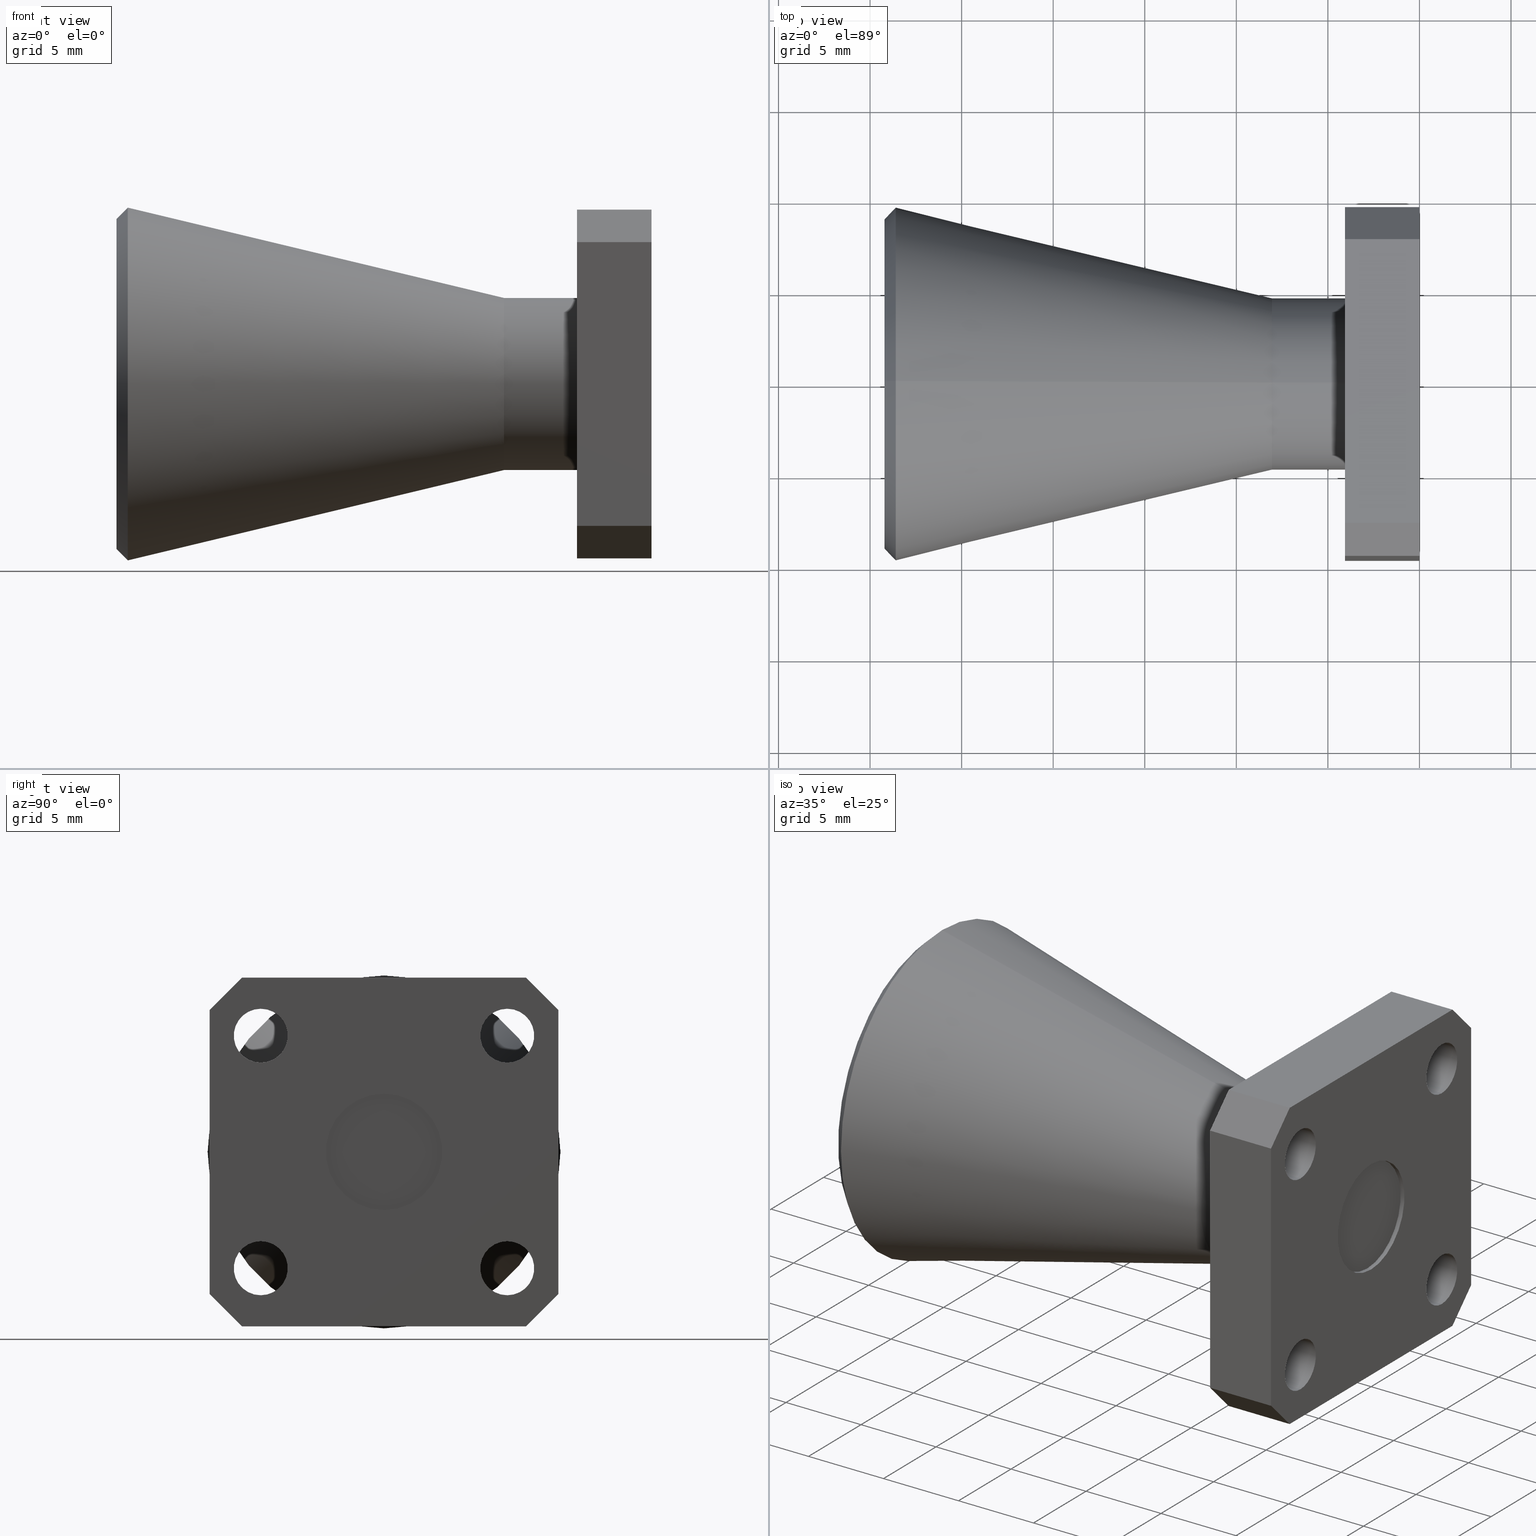
[diagram: canonical four-view strip — front | top / right | iso, engineering-drawing reading convention]
A machine part, canonical four-view strip (front | top / right | iso — engineering-drawing reading convention). The complete STEP part file that produces these views, byte-faithful:
ISO-10303-21;
HEADER;
FILE_DESCRIPTION (( 'STEP AP214' ),
    '1' );
FILE_NAME ('SAC-1533-250-S2, DF.STEP',
    '2018-05-25T22:20:50',
    ( '' ),
    ( '' ),
    'SwSTEP 2.0',
    'SolidWorks 2016',
    '' );
FILE_SCHEMA (( 'AUTOMOTIVE_DESIGN' ));
ENDSEC;

DATA;
#1 = VECTOR ( 'NONE', #634, 39.37007874015748100 ) ;
#2 = FACE_OUTER_BOUND ( 'NONE', #323, .T. ) ;
#3 = EDGE_LOOP ( 'NONE', ( #154, #747, #4, #443 ) ) ;
#4 = ORIENTED_EDGE ( 'NONE', *, *, #875, .T. ) ;
#5 = ORIENTED_EDGE ( 'NONE', *, *, #377, .T. ) ;
#6 = DIRECTION ( 'NONE',  ( 1.000000000000000000, -0.0000000000000000000, -0.0000000000000000000 ) ) ;
#7 = AXIS2_PLACEMENT_3D ( 'NONE', #635, #898, #772 ) ;
#8 = CARTESIAN_POINT ( 'NONE',  ( 0.0000000000000000000, 0.3750000000000000600, 0.3750000000000001100 ) ) ;
#9 = CARTESIAN_POINT ( 'NONE',  ( -0.1600000000000000000, 0.3750000000000000600, -0.3049999999999993300 ) ) ;
#10 = DIRECTION ( 'NONE',  ( 0.0000000000000000000, 0.0000000000000000000, 1.000000000000000000 ) ) ;
#11 = EDGE_CURVE ( 'NONE', #844, #597, #652, .T. ) ;
#12 = CARTESIAN_POINT ( 'NONE',  ( 0.0000000000000000000, -0.2650000000000000700, 0.2500000000000000600 ) ) ;
#13 = SHAPE_DEFINITION_REPRESENTATION ( #34, #124 ) ;
#14 = LINE ( 'NONE', #347, #730 ) ;
#15 = CARTESIAN_POINT ( 'NONE',  ( -0.1600000000000000000, -0.3049999999999996600, -0.3749999999999999400 ) ) ;
#16 = CONICAL_SURFACE ( 'NONE', #239, 0.3791920118220987200, 0.7853981633974469500 ) ;
#17 = ORIENTED_EDGE ( 'NONE', *, *, #191, .F. ) ;
#18 = ORIENTED_EDGE ( 'NONE', *, *, #328, .T. ) ;
#19 = DIRECTION ( 'NONE',  ( 1.000000000000000000, 0.0000000000000000000, 0.0000000000000000000 ) ) ;
#20 = ORIENTED_EDGE ( 'NONE', *, *, #491, .F. ) ;
#21 = CARTESIAN_POINT ( 'NONE',  ( -6.594723013408498700E-018, 0.2650000000000000100, -0.2499999999999999200 ) ) ;
#22 =( GEOMETRIC_REPRESENTATION_CONTEXT ( 3 ) GLOBAL_UNCERTAINTY_ASSIGNED_CONTEXT ( ( #497 ) ) GLOBAL_UNIT_ASSIGNED_CONTEXT ( ( #530, #327, #393 ) ) REPRESENTATION_CONTEXT ( 'NONE', 'WORKASPACE' ) );
#23 = ADVANCED_FACE ( 'NONE', ( #680 ), #624, .T. ) ;
#24 = DIRECTION ( 'NONE',  ( 0.0000000000000000000, 0.0000000000000000000, -1.000000000000000000 ) ) ;
#25 = DIRECTION ( 'NONE',  ( -1.000000000000000000, 0.0000000000000000000, 0.0000000000000000000 ) ) ;
#26 = COLOUR_RGB ( '',1.000000000000000000, 0.8117647058823529400, 0.5019607843137254800 ) ;
#27 = AXIS2_PLACEMENT_3D ( 'NONE', #212, #697, #886 ) ;
#28 = LINE ( 'NONE', #395, #88 ) ;
#29 = CARTESIAN_POINT ( 'NONE',  ( -0.3169400459818915700, 0.0000000000000000000, 0.0000000000000000000 ) ) ;
#30 = ORIENTED_EDGE ( 'NONE', *, *, #365, .F. ) ;
#31 = VERTEX_POINT ( 'NONE', #270 ) ;
#32 = ORIENTED_EDGE ( 'NONE', *, *, #408, .T. ) ;
#33 = ORIENTED_EDGE ( 'NONE', *, *, #126, .F. ) ;
#34 = PRODUCT_DEFINITION_SHAPE ( 'NONE', 'NONE',  #70 ) ;
#35 = DIRECTION ( 'NONE',  ( 1.000000000000000000, 0.0000000000000000000, 0.0000000000000000000 ) ) ;
#36 = AXIS2_PLACEMENT_3D ( 'NONE', #132, #471, #542 ) ;
#37 = VECTOR ( 'NONE', #216, 39.37007874015748900 ) ;
#38 = APPLICATION_PROTOCOL_DEFINITION ( 'draft international standard', 'automotive_design', 1998, #386 ) ;
#39 = CIRCLE ( 'NONE', #717, 0.1849999999999999400 ) ;
#40 = EDGE_CURVE ( 'NONE', #691, #300, #842, .T. ) ;
#41 = ORIENTED_EDGE ( 'NONE', *, *, #525, .T. ) ;
#42 = ORIENTED_EDGE ( 'NONE', *, *, #211, .T. ) ;
#43 = CARTESIAN_POINT ( 'NONE',  ( -6.594723013408498700E-018, -0.2650000000000000700, 0.3080000000000001100 ) ) ;
#44 = DIRECTION ( 'NONE',  ( 0.0000000000000000000, 0.0000000000000000000, -1.000000000000000000 ) ) ;
#45 = CARTESIAN_POINT ( 'NONE',  ( -6.594723013408498700E-018, 0.2649999999999999600, 0.2500000000000000600 ) ) ;
#46 = ADVANCED_FACE ( 'NONE', ( #341 ), #205, .T. ) ;
#47 = CARTESIAN_POINT ( 'NONE',  ( 0.0000000000000000000, -0.2650000000000000700, 0.1920000000000000900 ) ) ;
#48 =( CONVERSION_BASED_UNIT ( 'INCH', #728 ) LENGTH_UNIT ( ) NAMED_UNIT ( #74 ) );
#49 = CIRCLE ( 'NONE', #899, 0.05799999999999996800 ) ;
#50 = CARTESIAN_POINT ( 'NONE',  ( -1.125807988177900600, 0.0000000000000000000, 0.0000000000000000000 ) ) ;
#51 = LINE ( 'NONE', #8, #72 ) ;
#52 = EDGE_CURVE ( 'NONE', #853, #31, #493, .T. ) ;
#53 = ORIENTED_EDGE ( 'NONE', *, *, #887, .F. ) ;
#54 = APPLICATION_PROTOCOL_DEFINITION ( 'draft international standard', 'automotive_design', 1998, #468 ) ;
#55 = VECTOR ( 'NONE', #838, 39.37007874015748100 ) ;
#56 = AXIS2_PLACEMENT_3D ( 'NONE', #503, #787, #373 ) ;
#57 = ORIENTED_EDGE ( 'NONE', *, *, #278, .F. ) ;
#58 = CARTESIAN_POINT ( 'NONE',  ( -0.1600000000000000000, -0.3049999999999999400, 0.3750000000000001100 ) ) ;
#59 = AXIS2_PLACEMENT_3D ( 'NONE', #144, #280, #689 ) ;
#60 = CARTESIAN_POINT ( 'NONE',  ( -0.1600000000000000000, 0.0000000000000000000, -0.1849999999999999400 ) ) ;
#61 = VECTOR ( 'NONE', #68, 39.37007874015748100 ) ;
#62 = VECTOR ( 'NONE', #598, 39.37007874015748100 ) ;
#63 = DIRECTION ( 'NONE',  ( -0.0000000000000000000, -1.000000000000000000, -0.0000000000000000000 ) ) ;
#64 = VERTEX_POINT ( 'NONE', #547 ) ;
#65 = ORIENTED_EDGE ( 'NONE', *, *, #40, .T. ) ;
#66 = EDGE_CURVE ( 'NONE', #195, #893, #421, .T. ) ;
#67 = CARTESIAN_POINT ( 'NONE',  ( -1.149999999999999900, 0.0000000000000000000, 0.0000000000000000000 ) ) ;
#68 = DIRECTION ( 'NONE',  ( 1.000000000000000000, -0.0000000000000000000, -0.0000000000000000000 ) ) ;
#69 = ADVANCED_FACE ( 'NONE', ( #517 ), #583, .T. ) ;
#70 = PRODUCT_DEFINITION ( 'UNKNOWN', '', #751, #713 ) ;
#71 = CARTESIAN_POINT ( 'NONE',  ( -0.1600000000000000000, -0.2650000000000000100, -0.1919999999999999500 ) ) ;
#72 = VECTOR ( 'NONE', #217, 39.37007874015748100 ) ;
#73 = DIRECTION ( 'NONE',  ( 0.0000000000000000000, 0.0000000000000000000, -1.000000000000000000 ) ) ;
#74 = DIMENSIONAL_EXPONENTS ( 1.000000000000000000, 0.0000000000000000000, 0.0000000000000000000, 0.0000000000000000000, 0.0000000000000000000, 0.0000000000000000000, 0.0000000000000000000 ) ;
#75 = ORIENTED_EDGE ( 'NONE', *, *, #40, .F. ) ;
#76 = FACE_BOUND ( 'NONE', #147, .T. ) ;
#77 = ORIENTED_EDGE ( 'NONE', *, *, #170, .T. ) ;
#78 = VERTEX_POINT ( 'NONE', #483 ) ;
#79 = DIRECTION ( 'NONE',  ( -1.000000000000000000, 0.0000000000000000000, 0.0000000000000000000 ) ) ;
#80 = AXIS2_PLACEMENT_3D ( 'NONE', #82, #568, #370 ) ;
#81 = DIRECTION ( 'NONE',  ( -0.0000000000000000000, 0.7071067811865461300, 0.7071067811865489100 ) ) ;
#82 = CARTESIAN_POINT ( 'NONE',  ( -1.149999999999999900, 0.0000000000000000000, 0.0000000000000000000 ) ) ;
#83 = CARTESIAN_POINT ( 'NONE',  ( -0.1600000000000000000, 0.2650000000000000100, -0.3079999999999998800 ) ) ;
#84 = CARTESIAN_POINT ( 'NONE',  ( -0.01000000000000000000, 1.530808498934191500E-017, 0.1250000000000000000 ) ) ;
#85 =( GEOMETRIC_REPRESENTATION_CONTEXT ( 3 ) GLOBAL_UNCERTAINTY_ASSIGNED_CONTEXT ( ( #591 ) ) GLOBAL_UNIT_ASSIGNED_CONTEXT ( ( #48, #872, #599 ) ) REPRESENTATION_CONTEXT ( 'NONE', 'WORKASPACE' ) );
#86 = SURFACE_STYLE_FILL_AREA ( #740 ) ;
#87 = CARTESIAN_POINT ( 'NONE',  ( -6.594723013408498700E-018, 0.2650000000000000100, -0.2499999999999999200 ) ) ;
#88 = VECTOR ( 'NONE', #121, 39.37007874015748100 ) ;
#89 = DIRECTION ( 'NONE',  ( 1.000000000000000000, -0.0000000000000000000, -0.0000000000000000000 ) ) ;
#90 = EDGE_LOOP ( 'NONE', ( #529, #299, #831, #804 ) ) ;
#91 = CARTESIAN_POINT ( 'NONE',  ( -6.594723013408498700E-018, 0.2650000000000000100, -0.1919999999999999200 ) ) ;
#92 = EDGE_CURVE ( 'NONE', #870, #691, #710, .T. ) ;
#93 = ADVANCED_FACE ( 'NONE', ( #662, #252, #700, #368, #76, #155 ), #139, .T. ) ;
#94 = DIRECTION ( 'NONE',  ( -1.000000000000000000, 0.0000000000000000000, 0.0000000000000000000 ) ) ;
#95 = DIRECTION ( 'NONE',  ( 1.000000000000000000, -0.0000000000000000000, -0.0000000000000000000 ) ) ;
#96 = CIRCLE ( 'NONE', #476, 0.05799999999999996800 ) ;
#97 = ORIENTED_EDGE ( 'NONE', *, *, #161, .F. ) ;
#98 = ORIENTED_EDGE ( 'NONE', *, *, #512, .T. ) ;
#99 = ORIENTED_EDGE ( 'NONE', *, *, #416, .F. ) ;
#100 = ORIENTED_EDGE ( 'NONE', *, *, #122, .F. ) ;
#101 = DIRECTION ( 'NONE',  ( -0.0000000000000000000, -0.7071067811865461300, -0.7071067811865489100 ) ) ;
#102 = AXIS2_PLACEMENT_3D ( 'NONE', #567, #81, #283 ) ;
#103 = DIRECTION ( 'NONE',  ( 0.0000000000000000000, -0.0000000000000000000, 1.000000000000000000 ) ) ;
#104 = AXIS2_PLACEMENT_3D ( 'NONE', #67, #478, #266 ) ;
#105 = LINE ( 'NONE', #198, #221 ) ;
#106 = EDGE_LOOP ( 'NONE', ( #188, #351, #107, #291 ) ) ;
#107 = ORIENTED_EDGE ( 'NONE', *, *, #268, .T. ) ;
#108 = CARTESIAN_POINT ( 'NONE',  ( -0.1600000000000000000, 0.0000000000000000000, 0.0000000000000000000 ) ) ;
#109 = PLANE ( 'NONE',  #381 ) ;
#110 = DIRECTION ( 'NONE',  ( -1.000000000000000000, 0.0000000000000000000, 0.0000000000000000000 ) ) ;
#111 = CARTESIAN_POINT ( 'NONE',  ( 0.0000000000000000000, 0.0000000000000000000, 0.0000000000000000000 ) ) ;
#112 = ADVANCED_FACE ( 'NONE', ( #403 ), #210, .F. ) ;
#113 = DIRECTION ( 'NONE',  ( 0.7071067811865484600, 0.0000000000000000000, -0.7071067811865464600 ) ) ;
#114 = PRESENTATION_STYLE_ASSIGNMENT (( #427 ) ) ;
#115 = CONICAL_SURFACE ( 'NONE', #690, 0.3791920118220987200, 0.7853981633974469500 ) ;
#116 = AXIS2_PLACEMENT_3D ( 'NONE', #534, #110, #609 ) ;
#117 = ORIENTED_EDGE ( 'NONE', *, *, #259, .T. ) ;
#118 = ORIENTED_EDGE ( 'NONE', *, *, #659, .F. ) ;
#119 = ORIENTED_EDGE ( 'NONE', *, *, #142, .T. ) ;
#120 = FILL_AREA_STYLE_COLOUR ( '', #26 ) ;
#121 = DIRECTION ( 'NONE',  ( 1.000000000000000000, -0.0000000000000000000, -0.0000000000000000000 ) ) ;
#122 = EDGE_CURVE ( 'NONE', #893, #195, #509, .T. ) ;
#123 = ADVANCED_FACE ( 'NONE', ( #868 ), #16, .T. ) ;
#124 = ADVANCED_BREP_SHAPE_REPRESENTATION ( 'SAC-1533-250-S2, DF', ( #661, #600 ), #85 ) ;
#125 = VECTOR ( 'NONE', #636, 39.37007874015748100 ) ;
#126 = EDGE_CURVE ( 'NONE', #235, #629, #692, .T. ) ;
#127 = VERTEX_POINT ( 'NONE', #848 ) ;
#128 = ORIENTED_EDGE ( 'NONE', *, *, #384, .F. ) ;
#129 = ORIENTED_EDGE ( 'NONE', *, *, #191, .T. ) ;
#130 = CARTESIAN_POINT ( 'NONE',  ( -0.1600000000000000000, -0.3750000000000000600, 0.3750000000000001100 ) ) ;
#131 = EDGE_CURVE ( 'NONE', #633, #174, #194, .T. ) ;
#132 = CARTESIAN_POINT ( 'NONE',  ( -6.594723013408498700E-018, -0.2650000000000000700, 0.2500000000000000600 ) ) ;
#133 = DIRECTION ( 'NONE',  ( -0.0000000000000000000, 0.0000000000000000000, -1.000000000000000000 ) ) ;
#134 = CIRCLE ( 'NONE', #470, 0.1849999999999999400 ) ;
#135 = FACE_OUTER_BOUND ( 'NONE', #254, .T. ) ;
#136 = CARTESIAN_POINT ( 'NONE',  ( -0.3169400459818915700, 2.265596578422602400E-017, -0.1849999999999999400 ) ) ;
#137 = VERTEX_POINT ( 'NONE', #150 ) ;
#138 = VERTEX_POINT ( 'NONE', #714 ) ;
#139 = PLANE ( 'NONE',  #504 ) ;
#140 = ORIENTED_EDGE ( 'NONE', *, *, #698, .F. ) ;
#141 = CARTESIAN_POINT ( 'NONE',  ( 0.0000000000000000000, 1.530808498934191500E-017, 0.1250000000000000000 ) ) ;
#142 = EDGE_CURVE ( 'NONE', #64, #288, #828, .T. ) ;
#143 = CARTESIAN_POINT ( 'NONE',  ( -0.01000000000000000000, 0.0000000000000000000, -0.1250000000000000000 ) ) ;
#144 = CARTESIAN_POINT ( 'NONE',  ( -0.1600000000000000000, -0.3750000000000000600, -0.3749999999999999400 ) ) ;
#145 = CIRCLE ( 'NONE', #441, 0.05799999999999996800 ) ;
#146 = DIRECTION ( 'NONE',  ( 1.000000000000000000, 0.0000000000000000000, 0.0000000000000000000 ) ) ;
#147 = EDGE_LOOP ( 'NONE', ( #768, #655 ) ) ;
#148 = EDGE_LOOP ( 'NONE', ( #392, #274, #433, #265 ) ) ;
#149 = UNCERTAINTY_MEASURE_WITH_UNIT (LENGTH_MEASURE( 1.000000000000000100E-005 ), #287, 'distance_accuracy_value', 'NONE');
#150 = CARTESIAN_POINT ( 'NONE',  ( 0.0000000000000000000, 0.3750000000000000600, -0.3049999999999993300 ) ) ;
#151 = CARTESIAN_POINT ( 'NONE',  ( -0.01000000000000000000, 1.530808498934191500E-017, 0.1250000000000000000 ) ) ;
#152 = CARTESIAN_POINT ( 'NONE',  ( -0.1600000000000000000, 0.2649999999999999600, 0.1920000000000000900 ) ) ;
#153 = LINE ( 'NONE', #511, #364 ) ;
#154 = ORIENTED_EDGE ( 'NONE', *, *, #308, .F. ) ;
#155 = FACE_OUTER_BOUND ( 'NONE', #456, .T. ) ;
#156 = ORIENTED_EDGE ( 'NONE', *, *, #820, .F. ) ;
#157 = CARTESIAN_POINT ( 'NONE',  ( -0.1600000000000000000, 0.2649999999999999600, 0.2500000000000000600 ) ) ;
#158 = MECHANICAL_DESIGN_GEOMETRIC_PRESENTATION_REPRESENTATION (  '', ( #816 ), #303 ) ;
#159 = PLANE ( 'NONE',  #533 ) ;
#160 = CARTESIAN_POINT ( 'NONE',  ( -0.01000000000000000000, 0.0000000000000000000, 0.0000000000000000000 ) ) ;
#161 = EDGE_CURVE ( 'NONE', #138, #843, #627, .T. ) ;
#162 = LINE ( 'NONE', #557, #1 ) ;
#163 = CARTESIAN_POINT ( 'NONE',  ( -0.1600000000000000000, 2.265596578422602400E-017, 0.1849999999999999400 ) ) ;
#164 = VECTOR ( 'NONE', #883, 39.37007874015748100 ) ;
#165 = VECTOR ( 'NONE', #199, 39.37007874015748100 ) ;
#166 = CLOSED_SHELL ( 'NONE', ( #226, #446, #202, #189, #884, #123, #309, #69, #878, #871, #394, #46, #372, #889, #262, #267, #93, #407, #324, #23, #513, #669, #794, #306, #819, #653, #112, #603 ) ) ;
#167 = ORIENTED_EDGE ( 'NONE', *, *, #847, .T. ) ;
#168 = EDGE_CURVE ( 'NONE', #137, #745, #51, .T. ) ;
#169 = CARTESIAN_POINT ( 'NONE',  ( -0.1600000000000000000, -0.2650000000000000700, 0.2500000000000000600 ) ) ;
#170 = EDGE_CURVE ( 'NONE', #633, #712, #891, .T. ) ;
#171 = CYLINDRICAL_SURFACE ( 'NONE', #397, 0.05799999999999996800 ) ;
#172 = CARTESIAN_POINT ( 'NONE',  ( 0.0000000000000000000, 0.3049999999999993800, 0.3750000000000001100 ) ) ;
#173 = VECTOR ( 'NONE', #113, 39.37007874015748900 ) ;
#174 = VERTEX_POINT ( 'NONE', #425 ) ;
#175 = ORIENTED_EDGE ( 'NONE', *, *, #122, .T. ) ;
#176 = EDGE_LOOP ( 'NONE', ( #722, #167, #566, #196 ) ) ;
#177 = CARTESIAN_POINT ( 'NONE',  ( -6.594723013408498700E-018, -0.2650000000000000700, 0.2500000000000000600 ) ) ;
#178 = DIRECTION ( 'NONE',  ( 0.0000000000000000000, 0.0000000000000000000, -1.000000000000000000 ) ) ;
#179 = SURFACE_SIDE_STYLE ('',( #86 ) ) ;
#180 = DIRECTION ( 'NONE',  ( 1.000000000000000000, -0.0000000000000000000, -0.0000000000000000000 ) ) ;
#181 = CONICAL_SURFACE ( 'NONE', #592, 0.1849999999999999400, 0.2356194490192274600 ) ;
#182 = DIRECTION ( 'NONE',  ( 0.0000000000000000000, 0.0000000000000000000, -1.000000000000000000 ) ) ;
#183 = FACE_OUTER_BOUND ( 'NONE', #575, .T. ) ;
#184 = AXIS2_PLACEMENT_3D ( 'NONE', #612, #667, #182 ) ;
#185 = ORIENTED_EDGE ( 'NONE', *, *, #408, .F. ) ;
#186 = CARTESIAN_POINT ( 'NONE',  ( 0.0000000000000000000, -0.3750000000000000600, -0.3749999999999999400 ) ) ;
#187 = EDGE_LOOP ( 'NONE', ( #861, #406, #325, #486 ) ) ;
#188 = ORIENTED_EDGE ( 'NONE', *, *, #52, .T. ) ;
#189 = ADVANCED_FACE ( 'NONE', ( #183 ), #606, .F. ) ;
#190 = DIRECTION ( 'NONE',  ( 1.000000000000000000, 0.0000000000000000000, -0.0000000000000000000 ) ) ;
#191 = EDGE_CURVE ( 'NONE', #709, #519, #96, .T. ) ;
#192 = CARTESIAN_POINT ( 'NONE',  ( 0.0000000000000000000, 0.2650000000000000100, -0.1919999999999999500 ) ) ;
#193 = VECTOR ( 'NONE', #415, 39.37007874015748100 ) ;
#194 = CIRCLE ( 'NONE', #289, 0.05799999999999996800 ) ;
#195 = VERTEX_POINT ( 'NONE', #506 ) ;
#196 = ORIENTED_EDGE ( 'NONE', *, *, #161, .T. ) ;
#197 = EDGE_LOOP ( 'NONE', ( #99, #382 ) ) ;
#198 = CARTESIAN_POINT ( 'NONE',  ( -0.1600000000000000000, -0.3399999999999991900, -0.3400000000000005200 ) ) ;
#199 = DIRECTION ( 'NONE',  ( 1.000000000000000000, 0.0000000000000000000, 0.0000000000000000000 ) ) ;
#200 = DIRECTION ( 'NONE',  ( 1.000000000000000000, -0.0000000000000000000, -0.0000000000000000000 ) ) ;
#201 = CARTESIAN_POINT ( 'NONE',  ( -0.1600000000000000000, 0.3399999999999993000, 0.3400000000000006400 ) ) ;
#202 = ADVANCED_FACE ( 'NONE', ( #271 ), #440, .F. ) ;
#203 = AXIS2_PLACEMENT_3D ( 'NONE', #169, #310, #716 ) ;
#204 =( LENGTH_UNIT ( ) NAMED_UNIT ( * ) SI_UNIT ( $, .METRE. ) );
#205 = PLANE ( 'NONE',  #59 ) ;
#206 = LINE ( 'NONE', #492, #800 ) ;
#207 = VECTOR ( 'NONE', #521, 39.37007874015748100 ) ;
#208 = CARTESIAN_POINT ( 'NONE',  ( -0.1600000000000000000, 0.3750000000000000600, 0.3050000000000000500 ) ) ;
#209 = EDGE_LOOP ( 'NONE', ( #33, #233, #333, #353 ) ) ;
#210 = CYLINDRICAL_SURFACE ( 'NONE', #326, 0.05799999999999996800 ) ;
#211 = EDGE_CURVE ( 'NONE', #607, #288, #594, .T. ) ;
#212 = CARTESIAN_POINT ( 'NONE',  ( -0.1600000000000000000, 0.2649999999999999600, 0.2500000000000000600 ) ) ;
#213 = EDGE_LOOP ( 'NONE', ( #332, #420 ) ) ;
#214 = ORIENTED_EDGE ( 'NONE', *, *, #448, .F. ) ;
#215 = DIRECTION ( 'NONE',  ( 1.000000000000000000, -0.0000000000000000000, -0.0000000000000000000 ) ) ;
#216 = DIRECTION ( 'NONE',  ( 0.7071067811865484600, 8.659560562354920500E-017, 0.7071067811865464600 ) ) ;
#217 = DIRECTION ( 'NONE',  ( -0.0000000000000000000, -0.0000000000000000000, 1.000000000000000000 ) ) ;
#218 = AXIS2_PLACEMENT_3D ( 'NONE', #896, #773, #490 ) ;
#219 = CARTESIAN_POINT ( 'NONE',  ( -0.3169400459818915700, 0.0000000000000000000, -0.1849999999999999400 ) ) ;
#220 = LINE ( 'NONE', #489, #37 ) ;
#221 = VECTOR ( 'NONE', #817, 39.37007874015748100 ) ;
#222 = CARTESIAN_POINT ( 'NONE',  ( 0.0000000000000000000, 0.2649999999999999600, 0.2500000000000000600 ) ) ;
#223 = FACE_OUTER_BOUND ( 'NONE', #445, .T. ) ;
#224 = VERTEX_POINT ( 'NONE', #15 ) ;
#225 = ORIENTED_EDGE ( 'NONE', *, *, #453, .T. ) ;
#226 = ADVANCED_FACE ( 'NONE', ( #507 ), #650, .F. ) ;
#227 = DIRECTION ( 'NONE',  ( -1.000000000000000000, 0.0000000000000000000, 0.0000000000000000000 ) ) ;
#228 = EDGE_CURVE ( 'NONE', #224, #691, #811, .T. ) ;
#229 = CARTESIAN_POINT ( 'NONE',  ( -0.1600000000000000000, -0.3750000000000000600, -0.3749999999999999400 ) ) ;
#230 = DIRECTION ( 'NONE',  ( 0.0000000000000000000, 0.0000000000000000000, -1.000000000000000000 ) ) ;
#231 = DIRECTION ( 'NONE',  ( 1.000000000000000000, -0.0000000000000000000, -0.0000000000000000000 ) ) ;
#232 = LINE ( 'NONE', #208, #193 ) ;
#233 = ORIENTED_EDGE ( 'NONE', *, *, #259, .F. ) ;
#234 = ORIENTED_EDGE ( 'NONE', *, *, #539, .F. ) ;
#235 = VERTEX_POINT ( 'NONE', #151 ) ;
#236 = ORIENTED_EDGE ( 'NONE', *, *, #377, .F. ) ;
#237 = AXIS2_PLACEMENT_3D ( 'NONE', #449, #798, #311 ) ;
#238 = DIRECTION ( 'NONE',  ( 1.000000000000000000, 0.0000000000000000000, 0.0000000000000000000 ) ) ;
#239 = AXIS2_PLACEMENT_3D ( 'NONE', #766, #832, #417 ) ;
#240 = LINE ( 'NONE', #136, #348 ) ;
#241 = LINE ( 'NONE', #628, #125 ) ;
#242 = FACE_OUTER_BOUND ( 'NONE', #243, .T. ) ;
#243 = EDGE_LOOP ( 'NONE', ( #654, #444, #273, #119 ) ) ;
#244 = ORIENTED_EDGE ( 'NONE', *, *, #605, .T. ) ;
#245 = CARTESIAN_POINT ( 'NONE',  ( 0.0000000000000000000, 0.2650000000000000100, -0.2499999999999999200 ) ) ;
#246 = DIRECTION ( 'NONE',  ( 0.0000000000000000000, 0.0000000000000000000, 1.000000000000000000 ) ) ;
#247 = DIRECTION ( 'NONE',  ( 1.000000000000000000, -0.0000000000000000000, -0.0000000000000000000 ) ) ;
#248 = AXIS2_PLACEMENT_3D ( 'NONE', #683, #761, #190 ) ;
#249 = DIRECTION ( 'NONE',  ( 1.000000000000000000, -0.0000000000000000000, -0.0000000000000000000 ) ) ;
#250 = FACE_BOUND ( 'NONE', #213, .T. ) ;
#251 = EDGE_LOOP ( 'NONE', ( #225, #369, #156, #234 ) ) ;
#252 = FACE_BOUND ( 'NONE', #510, .T. ) ;
#253 = ORIENTED_EDGE ( 'NONE', *, *, #11, .F. ) ;
#254 = EDGE_LOOP ( 'NONE', ( #475, #41, #20, #352, #880, #830, #724, #463 ) ) ;
#255 = DIRECTION ( 'NONE',  ( 0.0000000000000000000, 0.0000000000000000000, -1.000000000000000000 ) ) ;
#256 = EDGE_CURVE ( 'NONE', #538, #224, #454, .T. ) ;
#257 = CARTESIAN_POINT ( 'NONE',  ( 0.0000000000000000000, 0.0000000000000000000, -0.1849999999999999400 ) ) ;
#258 = CARTESIAN_POINT ( 'NONE',  ( 0.0000000000000000000, -0.3750000000000000600, 0.3750000000000001100 ) ) ;
#259 = EDGE_CURVE ( 'NONE', #758, #235, #562, .T. ) ;
#260 = VECTOR ( 'NONE', #79, 39.37007874015748100 ) ;
#261 = LINE ( 'NONE', #47, #62 ) ;
#262 = ADVANCED_FACE ( 'NONE', ( #574 ), #502, .T. ) ;
#263 = CARTESIAN_POINT ( 'NONE',  ( 0.0000000000000000000, -0.3049999999999996600, -0.3749999999999999400 ) ) ;
#264 = VERTEX_POINT ( 'NONE', #580 ) ;
#265 = ORIENTED_EDGE ( 'NONE', *, *, #416, .T. ) ;
#266 = DIRECTION ( 'NONE',  ( 0.0000000000000000000, 0.0000000000000000000, 1.000000000000000000 ) ) ;
#267 = ADVANCED_FACE ( 'NONE', ( #581, #322, #671, #250, #526, #135 ), #159, .T. ) ;
#268 = EDGE_CURVE ( 'NONE', #264, #812, #708, .T. ) ;
#269 = CARTESIAN_POINT ( 'NONE',  ( -0.3169400459818915700, 0.0000000000000000000, 0.0000000000000000000 ) ) ;
#270 = CARTESIAN_POINT ( 'NONE',  ( -0.1600000000000000000, 0.2649999999999999600, 0.3080000000000000500 ) ) ;
#271 = FACE_OUTER_BOUND ( 'NONE', #795, .T. ) ;
#272 = ORIENTED_EDGE ( 'NONE', *, *, #553, .F. ) ;
#273 = ORIENTED_EDGE ( 'NONE', *, *, #409, .T. ) ;
#274 = ORIENTED_EDGE ( 'NONE', *, *, #793, .T. ) ;
#275 = VERTEX_POINT ( 'NONE', #163 ) ;
#276 = CARTESIAN_POINT ( 'NONE',  ( -0.1600000000000000000, 0.3750000000000000600, 0.3750000000000001100 ) ) ;
#277 = DIRECTION ( 'NONE',  ( 1.000000000000000000, -0.0000000000000000000, -0.0000000000000000000 ) ) ;
#278 = EDGE_CURVE ( 'NONE', #174, #672, #756, .T. ) ;
#279 = DIRECTION ( 'NONE',  ( -0.9723699203976782200, 2.858881176219153900E-017, -0.2334453638558985600 ) ) ;
#280 = DIRECTION ( 'NONE',  ( 0.0000000000000000000, 0.0000000000000000000, -1.000000000000000000 ) ) ;
#281 = AXIS2_PLACEMENT_3D ( 'NONE', #177, #247, #255 ) ;
#282 = PRODUCT ( 'SAC-1533-250-S2, DF', 'SAC-1533-250-S2, DF', '', ( #805 ) ) ;
#283 = DIRECTION ( 'NONE',  ( 1.000000000000000000, 0.0000000000000000000, 0.0000000000000000000 ) ) ;
#284 = DIRECTION ( 'NONE',  ( 0.0000000000000000000, 0.0000000000000000000, -1.000000000000000000 ) ) ;
#285 = VECTOR ( 'NONE', #200, 39.37007874015748100 ) ;
#286 = LINE ( 'NONE', #130, #720 ) ;
#287 =( CONVERSION_BASED_UNIT ( 'INCH', #876 ) LENGTH_UNIT ( ) NAMED_UNIT ( #479 ) );
#288 = VERTEX_POINT ( 'NONE', #375 ) ;
#289 = AXIS2_PLACEMENT_3D ( 'NONE', #648, #366, #297 ) ;
#290 = CARTESIAN_POINT ( 'NONE',  ( 0.0000000000000000000, -0.2650000000000000700, 0.2500000000000000600 ) ) ;
#291 = ORIENTED_EDGE ( 'NONE', *, *, #807, .F. ) ;
#292 = EDGE_LOOP ( 'NONE', ( #432, #781 ) ) ;
#293 = DIRECTION ( 'NONE',  ( 1.000000000000000000, -0.0000000000000000000, -0.0000000000000000000 ) ) ;
#294 = CARTESIAN_POINT ( 'NONE',  ( -0.1600000000000000000, -0.3049999999999996600, -0.3749999999999999400 ) ) ;
#295 = DIRECTION ( 'NONE',  ( 1.000000000000000000, -0.0000000000000000000, -0.0000000000000000000 ) ) ;
#296 = LINE ( 'NONE', #480, #472 ) ;
#297 = DIRECTION ( 'NONE',  ( 0.0000000000000000000, 0.0000000000000000000, 1.000000000000000000 ) ) ;
#298 = CIRCLE ( 'NONE', #569, 0.05800000000000000300 ) ;
#299 = ORIENTED_EDGE ( 'NONE', *, *, #319, .T. ) ;
#300 = VERTEX_POINT ( 'NONE', #802 ) ;
#301 = CARTESIAN_POINT ( 'NONE',  ( 0.0000000000000000000, 0.0000000000000000000, 0.0000000000000000000 ) ) ;
#302 = ORIENTED_EDGE ( 'NONE', *, *, #453, .F. ) ;
#303 =( GEOMETRIC_REPRESENTATION_CONTEXT ( 3 ) GLOBAL_UNCERTAINTY_ASSIGNED_CONTEXT ( ( #149 ) ) GLOBAL_UNIT_ASSIGNED_CONTEXT ( ( #287, #695, #829 ) ) REPRESENTATION_CONTEXT ( 'NONE', 'WORKASPACE' ) );
#304 = EDGE_LOOP ( 'NONE', ( #462, #608, #582, #815 ) ) ;
#305 = DIRECTION ( 'NONE',  ( 0.0000000000000000000, 0.0000000000000000000, -1.000000000000000000 ) ) ;
#306 = ADVANCED_FACE ( 'NONE', ( #2 ), #451, .F. ) ;
#307 = DIRECTION ( 'NONE',  ( 0.0000000000000000000, 0.0000000000000000000, -1.000000000000000000 ) ) ;
#308 = EDGE_CURVE ( 'NONE', #235, #758, #549, .T. ) ;
#309 = ADVANCED_FACE ( 'NONE', ( #389 ), #641, .T. ) ;
#310 = DIRECTION ( 'NONE',  ( -1.000000000000000000, 0.0000000000000000000, 0.0000000000000000000 ) ) ;
#311 = DIRECTION ( 'NONE',  ( 0.0000000000000000000, 0.0000000000000000000, -1.000000000000000000 ) ) ;
#312 = EDGE_LOOP ( 'NONE', ( #117, #314 ) ) ;
#313 = ORIENTED_EDGE ( 'NONE', *, *, #864, .T. ) ;
#314 = ORIENTED_EDGE ( 'NONE', *, *, #308, .T. ) ;
#315 = EDGE_CURVE ( 'NONE', #610, #783, #790, .T. ) ;
#316 = AXIS2_PLACEMENT_3D ( 'NONE', #665, #238, #726 ) ;
#317 = CARTESIAN_POINT ( 'NONE',  ( -1.125807988177900600, 0.0000000000000000000, -0.3791920118220987200 ) ) ;
#318 = DIRECTION ( 'NONE',  ( 1.000000000000000000, -0.0000000000000000000, -0.0000000000000000000 ) ) ;
#319 = EDGE_CURVE ( 'NONE', #792, #834, #39, .T. ) ;
#320 = LINE ( 'NONE', #543, #481 ) ;
#321 = DIRECTION ( 'NONE',  ( 0.0000000000000000000, 0.0000000000000000000, -1.000000000000000000 ) ) ;
#322 = FACE_BOUND ( 'NONE', #405, .T. ) ;
#323 = EDGE_LOOP ( 'NONE', ( #253, #118, #527, #682 ) ) ;
#324 = ADVANCED_FACE ( 'NONE', ( #461 ), #482, .F. ) ;
#325 = ORIENTED_EDGE ( 'NONE', *, *, #558, .F. ) ;
#326 = AXIS2_PLACEMENT_3D ( 'NONE', #556, #277, #626 ) ;
#327 =( NAMED_UNIT ( * ) PLANE_ANGLE_UNIT ( ) SI_UNIT ( $, .RADIAN. ) );
#328 = EDGE_CURVE ( 'NONE', #127, #607, #153, .T. ) ;
#329 = AXIS2_PLACEMENT_3D ( 'NONE', #532, #318, #321 ) ;
#330 = CIRCLE ( 'NONE', #645, 0.05800000000000003800 ) ;
#331 = CIRCLE ( 'NONE', #218, 0.05799999999999996800 ) ;
#332 = ORIENTED_EDGE ( 'NONE', *, *, #315, .F. ) ;
#333 = ORIENTED_EDGE ( 'NONE', *, *, #750, .T. ) ;
#334 = AXIS2_PLACEMENT_3D ( 'NONE', #21, #231, #640 ) ;
#335 = DIRECTION ( 'NONE',  ( -1.000000000000000000, 0.0000000000000000000, 0.0000000000000000000 ) ) ;
#336 = DIRECTION ( 'NONE',  ( -1.000000000000000000, 0.0000000000000000000, 0.0000000000000000000 ) ) ;
#337 = CYLINDRICAL_SURFACE ( 'NONE', #426, 0.05799999999999996800 ) ;
#338 = VECTOR ( 'NONE', #146, 39.37007874015748100 ) ;
#339 = DIRECTION ( 'NONE',  ( -0.0000000000000000000, -0.0000000000000000000, 1.000000000000000000 ) ) ;
#340 = ORIENTED_EDGE ( 'NONE', *, *, #741, .T. ) ;
#341 = FACE_OUTER_BOUND ( 'NONE', #735, .T. ) ;
#342 = DIRECTION ( 'NONE',  ( 1.000000000000000000, -0.0000000000000000000, -0.0000000000000000000 ) ) ;
#343 = ORIENTED_EDGE ( 'NONE', *, *, #553, .T. ) ;
#344 = CARTESIAN_POINT ( 'NONE',  ( -0.1600000000000000000, 0.3049999999999996600, 0.3750000000000001100 ) ) ;
#345 = CARTESIAN_POINT ( 'NONE',  ( 0.0000000000000000000, -0.2650000000000000100, -0.1919999999999999500 ) ) ;
#346 = AXIS2_PLACEMENT_3D ( 'NONE', #447, #718, #863 ) ;
#347 = CARTESIAN_POINT ( 'NONE',  ( 0.0000000000000000000, 0.3400000000000005200, -0.3399999999999992500 ) ) ;
#348 = VECTOR ( 'NONE', #279, 39.37007874015748100 ) ;
#349 = EDGE_CURVE ( 'NONE', #709, #138, #731, .T. ) ;
#350 = LINE ( 'NONE', #550, #668 ) ;
#351 = ORIENTED_EDGE ( 'NONE', *, *, #637, .T. ) ;
#352 = ORIENTED_EDGE ( 'NONE', *, *, #11, .T. ) ;
#353 = ORIENTED_EDGE ( 'NONE', *, *, #836, .T. ) ;
#354 = CARTESIAN_POINT ( 'NONE',  ( -0.1600000000000000000, 0.3049999999999996600, -0.3749999999999999400 ) ) ;
#355 = CARTESIAN_POINT ( 'NONE',  ( -0.1600000000000000000, 0.2650000000000000100, -0.2499999999999999200 ) ) ;
#356 = EDGE_CURVE ( 'NONE', #792, #275, #28, .T. ) ;
#357 = CARTESIAN_POINT ( 'NONE',  ( -6.594723013408498700E-018, -0.2650000000000000100, -0.2499999999999999200 ) ) ;
#358 = AXIS2_PLACEMENT_3D ( 'NONE', #646, #715, #852 ) ;
#359 = DIRECTION ( 'NONE',  ( 0.0000000000000000000, 0.0000000000000000000, 1.000000000000000000 ) ) ;
#360 = DIRECTION ( 'NONE',  ( 1.000000000000000000, -0.0000000000000000000, -0.0000000000000000000 ) ) ;
#361 = VECTOR ( 'NONE', #856, 39.37007874015748100 ) ;
#362 = FACE_OUTER_BOUND ( 'NONE', #702, .T. ) ;
#363 = CARTESIAN_POINT ( 'NONE',  ( -0.1600000000000000000, 0.2650000000000000100, -0.2499999999999999200 ) ) ;
#364 = VECTOR ( 'NONE', #101, 39.37007874015748100 ) ;
#365 = EDGE_CURVE ( 'NONE', #195, #621, #822, .T. ) ;
#366 = DIRECTION ( 'NONE',  ( -1.000000000000000000, 0.0000000000000000000, 0.0000000000000000000 ) ) ;
#367 = ORIENTED_EDGE ( 'NONE', *, *, #448, .T. ) ;
#368 = FACE_BOUND ( 'NONE', #518, .T. ) ;
#369 = ORIENTED_EDGE ( 'NONE', *, *, #356, .T. ) ;
#370 = DIRECTION ( 'NONE',  ( 0.0000000000000000000, 0.0000000000000000000, 1.000000000000000000 ) ) ;
#371 = AXIS2_PLACEMENT_3D ( 'NONE', #694, #342, #73 ) ;
#372 = ADVANCED_FACE ( 'NONE', ( #242 ), #743, .T. ) ;
#373 = DIRECTION ( 'NONE',  ( 1.000000000000000000, 0.0000000000000000000, 0.0000000000000000000 ) ) ;
#374 = CYLINDRICAL_SURFACE ( 'NONE', #615, 0.1849999999999999400 ) ;
#375 = CARTESIAN_POINT ( 'NONE',  ( 0.0000000000000000000, -0.3750000000000000600, -0.3049999999999996000 ) ) ;
#376 = VECTOR ( 'NONE', #658, 39.37007874015748100 ) ;
#377 = EDGE_CURVE ( 'NONE', #814, #621, #866, .T. ) ;
#378 = ORIENTED_EDGE ( 'NONE', *, *, #278, .T. ) ;
#379 = EDGE_LOOP ( 'NONE', ( #564, #663 ) ) ;
#380 = VERTEX_POINT ( 'NONE', #172 ) ;
#381 = AXIS2_PLACEMENT_3D ( 'NONE', #675, #246, #809 ) ;
#382 = ORIENTED_EDGE ( 'NONE', *, *, #268, .F. ) ;
#383 = CARTESIAN_POINT ( 'NONE',  ( -0.1600000000000000000, 0.3750000000000000600, 0.3750000000000001100 ) ) ;
#384 = EDGE_CURVE ( 'NONE', #792, #814, #803, .T. ) ;
#385 = CARTESIAN_POINT ( 'NONE',  ( 0.0000000000000000000, 0.2650000000000000100, -0.3079999999999998800 ) ) ;
#386 = APPLICATION_CONTEXT ( 'automotive_design' ) ;
#387 = FACE_OUTER_BOUND ( 'NONE', #3, .T. ) ;
#388 = COLOUR_RGB ( '',1.000000000000000000, 0.8117647058823529400, 0.5019607843137254800 ) ;
#389 = FACE_OUTER_BOUND ( 'NONE', #673, .T. ) ;
#390 = ORIENTED_EDGE ( 'NONE', *, *, #142, .F. ) ;
#391 =( LENGTH_UNIT ( ) NAMED_UNIT ( * ) SI_UNIT ( $, .METRE. ) );
#392 = ORIENTED_EDGE ( 'NONE', *, *, #637, .F. ) ;
#393 =( NAMED_UNIT ( * ) SI_UNIT ( $, .STERADIAN. ) SOLID_ANGLE_UNIT ( ) );
#394 = ADVANCED_FACE ( 'NONE', ( #412 ), #467, .T. ) ;
#395 = CARTESIAN_POINT ( 'NONE',  ( 0.0000000000000000000, 2.265596578422602400E-017, 0.1849999999999999400 ) ) ;
#396 = CARTESIAN_POINT ( 'NONE',  ( 0.0000000000000000000, 0.0000000000000000000, -0.1250000000000000000 ) ) ;
#397 = AXIS2_PLACEMENT_3D ( 'NONE', #245, #249, #808 ) ;
#398 = DIRECTION ( 'NONE',  ( 0.0000000000000000000, -0.0000000000000000000, -1.000000000000000000 ) ) ;
#399 = CIRCLE ( 'NONE', #455, 0.05800000000000003800 ) ;
#400 = CARTESIAN_POINT ( 'NONE',  ( 0.0000000000000000000, 0.0000000000000000000, 0.0000000000000000000 ) ) ;
#401 = VECTOR ( 'NONE', #531, 39.37007874015748100 ) ;
#402 = ORIENTED_EDGE ( 'NONE', *, *, #498, .F. ) ;
#403 = FACE_OUTER_BOUND ( 'NONE', #176, .T. ) ;
#404 = DIRECTION ( 'NONE',  ( 1.000000000000000000, -0.0000000000000000000, -0.0000000000000000000 ) ) ;
#405 = EDGE_LOOP ( 'NONE', ( #17, #833 ) ) ;
#406 = ORIENTED_EDGE ( 'NONE', *, *, #587, .T. ) ;
#407 = ADVANCED_FACE ( 'NONE', ( #223 ), #115, .T. ) ;
#408 = EDGE_CURVE ( 'NONE', #610, #551, #261, .T. ) ;
#409 = EDGE_CURVE ( 'NONE', #78, #64, #780, .T. ) ;
#410 = CARTESIAN_POINT ( 'NONE',  ( -0.1600000000000000000, -0.3049999999999999400, 0.3750000000000001100 ) ) ;
#411 = LINE ( 'NONE', #824, #164 ) ;
#412 = FACE_OUTER_BOUND ( 'NONE', #496, .T. ) ;
#413 = ORIENTED_EDGE ( 'NONE', *, *, #256, .F. ) ;
#414 = ORIENTED_EDGE ( 'NONE', *, *, #793, .F. ) ;
#415 = DIRECTION ( 'NONE',  ( 1.000000000000000000, 0.0000000000000000000, 0.0000000000000000000 ) ) ;
#416 = EDGE_CURVE ( 'NONE', #812, #264, #298, .T. ) ;
#417 = DIRECTION ( 'NONE',  ( 0.0000000000000000000, 0.0000000000000000000, -1.000000000000000000 ) ) ;
#418 = LENGTH_MEASURE_WITH_UNIT ( LENGTH_MEASURE( 0.02539999999999999900 ), #522 );
#419 = VECTOR ( 'NONE', #707, 39.37007874015748100 ) ;
#420 = ORIENTED_EDGE ( 'NONE', *, *, #614, .F. ) ;
#421 = CIRCLE ( 'NONE', #104, 0.3549999999999994300 ) ;
#422 = ORIENTED_EDGE ( 'NONE', *, *, #525, .F. ) ;
#423 = VERTEX_POINT ( 'NONE', #43 ) ;
#424 = DIRECTION ( 'NONE',  ( -1.000000000000000000, 0.0000000000000000000, 0.0000000000000000000 ) ) ;
#425 = CARTESIAN_POINT ( 'NONE',  ( -0.1600000000000000000, -0.2650000000000000100, -0.3079999999999998800 ) ) ;
#426 = AXIS2_PLACEMENT_3D ( 'NONE', #699, #6, #839 ) ;
#427 = SURFACE_STYLE_USAGE ( .BOTH. , #625 ) ;
#428 = DIRECTION ( 'NONE',  ( 0.0000000000000000000, 0.0000000000000000000, -1.000000000000000000 ) ) ;
#429 = FACE_OUTER_BOUND ( 'NONE', #770, .T. ) ;
#430 = EDGE_CURVE ( 'NONE', #551, #423, #679, .T. ) ;
#431 = VECTOR ( 'NONE', #623, 39.37007874015748100 ) ;
#432 = ORIENTED_EDGE ( 'NONE', *, *, #820, .T. ) ;
#433 = ORIENTED_EDGE ( 'NONE', *, *, #807, .T. ) ;
#434 = DIRECTION ( 'NONE',  ( 0.0000000000000000000, 0.0000000000000000000, -1.000000000000000000 ) ) ;
#435 = EDGE_CURVE ( 'NONE', #275, #585, #801, .T. ) ;
#436 = CARTESIAN_POINT ( 'NONE',  ( -0.1600000000000000000, -0.2650000000000000700, 0.3080000000000000500 ) ) ;
#437 = DIRECTION ( 'NONE',  ( 0.0000000000000000000, 0.0000000000000000000, -1.000000000000000000 ) ) ;
#438 = DIRECTION ( 'NONE',  ( 0.0000000000000000000, 0.0000000000000000000, 1.000000000000000000 ) ) ;
#439 = DIMENSIONAL_EXPONENTS ( 1.000000000000000000, 0.0000000000000000000, 0.0000000000000000000, 0.0000000000000000000, 0.0000000000000000000, 0.0000000000000000000, 0.0000000000000000000 ) ;
#440 = CYLINDRICAL_SURFACE ( 'NONE', #754, 0.05799999999999996800 ) ;
#441 = AXIS2_PLACEMENT_3D ( 'NONE', #613, #336, #885 ) ;
#442 = ORIENTED_EDGE ( 'NONE', *, *, #349, .F. ) ;
#443 = ORIENTED_EDGE ( 'NONE', *, *, #750, .F. ) ;
#444 = ORIENTED_EDGE ( 'NONE', *, *, #620, .T. ) ;
#445 = EDGE_LOOP ( 'NONE', ( #565, #664, #540, #236 ) ) ;
#446 = ADVANCED_FACE ( 'NONE', ( #821 ), #171, .F. ) ;
#447 = CARTESIAN_POINT ( 'NONE',  ( -0.1600000000000000000, 0.3750000000000000600, 0.3050000000000000500 ) ) ;
#448 = EDGE_CURVE ( 'NONE', #174, #633, #145, .T. ) ;
#449 = CARTESIAN_POINT ( 'NONE',  ( -0.01000000000000000000, 0.0000000000000000000, 0.0000000000000000000 ) ) ;
#450 = CIRCLE ( 'NONE', #785, 0.1250000000000000000 ) ;
#451 = PLANE ( 'NONE',  #346 ) ;
#452 = FACE_OUTER_BOUND ( 'NONE', #148, .T. ) ;
#453 = EDGE_CURVE ( 'NONE', #834, #792, #134, .T. ) ;
#454 = LINE ( 'NONE', #294, #765 ) ;
#455 = AXIS2_PLACEMENT_3D ( 'NONE', #87, #849, #437 ) ;
#456 = EDGE_LOOP ( 'NONE', ( #541, #18, #42, #733, #693, #474, #642, #759 ) ) ;
#457 = DIRECTION ( 'NONE',  ( 0.0000000000000000000, 0.0000000000000000000, 1.000000000000000000 ) ) ;
#458 = DIRECTION ( 'NONE',  ( 0.0000000000000000000, -1.000000000000000000, 0.0000000000000000000 ) ) ;
#459 = VECTOR ( 'NONE', #469, 39.37007874015748100 ) ;
#460 = CARTESIAN_POINT ( 'NONE',  ( -0.1600000000000000000, -0.3750000000000000600, 0.3750000000000001100 ) ) ;
#461 = FACE_OUTER_BOUND ( 'NONE', #209, .T. ) ;
#462 = ORIENTED_EDGE ( 'NONE', *, *, #168, .F. ) ;
#463 = ORIENTED_EDGE ( 'NONE', *, *, #498, .T. ) ;
#464 = EDGE_CURVE ( 'NONE', #538, #300, #706, .T. ) ;
#465 = ORIENTED_EDGE ( 'NONE', *, *, #228, .T. ) ;
#466 = EDGE_LOOP ( 'NONE', ( #214, #674 ) ) ;
#467 = PLANE ( 'NONE',  #116 ) ;
#468 = APPLICATION_CONTEXT ( 'automotive_design' ) ;
#469 = DIRECTION ( 'NONE',  ( 1.000000000000000000, 0.0000000000000000000, 0.0000000000000000000 ) ) ;
#470 = AXIS2_PLACEMENT_3D ( 'NONE', #269, #404, #622 ) ;
#471 = DIRECTION ( 'NONE',  ( 1.000000000000000000, -0.0000000000000000000, -0.0000000000000000000 ) ) ;
#472 = VECTOR ( 'NONE', #837, 39.37007874015748100 ) ;
#473 = ORIENTED_EDGE ( 'NONE', *, *, #131, .T. ) ;
#474 = ORIENTED_EDGE ( 'NONE', *, *, #678, .T. ) ;
#475 = ORIENTED_EDGE ( 'NONE', *, *, #409, .F. ) ;
#476 = AXIS2_PLACEMENT_3D ( 'NONE', #355, #841, #10 ) ;
#477 = CARTESIAN_POINT ( 'NONE',  ( -0.1600000000000000000, 0.3750000000000000600, 0.3050000000000000500 ) ) ;
#478 = DIRECTION ( 'NONE',  ( -1.000000000000000000, 0.0000000000000000000, 0.0000000000000000000 ) ) ;
#479 = DIMENSIONAL_EXPONENTS ( 1.000000000000000000, 0.0000000000000000000, 0.0000000000000000000, 0.0000000000000000000, 0.0000000000000000000, 0.0000000000000000000, 0.0000000000000000000 ) ;
#480 = CARTESIAN_POINT ( 'NONE',  ( 0.0000000000000000000, 0.2649999999999999600, 0.3080000000000000500 ) ) ;
#481 = VECTOR ( 'NONE', #335, 39.37007874015748100 ) ;
#482 = CYLINDRICAL_SURFACE ( 'NONE', #237, 0.1250000000000000000 ) ;
#483 = CARTESIAN_POINT ( 'NONE',  ( -0.1600000000000000000, -0.3750000000000000600, 0.3049999999999997700 ) ) ;
#484 = ORIENTED_EDGE ( 'NONE', *, *, #860, .T. ) ;
#485 = ORIENTED_EDGE ( 'NONE', *, *, #315, .T. ) ;
#486 = ORIENTED_EDGE ( 'NONE', *, *, #659, .T. ) ;
#487 = DIRECTION ( 'NONE',  ( 0.0000000000000000000, 0.7071067811865461300, 0.7071067811865489100 ) ) ;
#488 = AXIS2_PLACEMENT_3D ( 'NONE', #222, #89, #434 ) ;
#489 = CARTESIAN_POINT ( 'NONE',  ( -1.125807988177900600, 4.643762835401785000E-017, 0.3791920118220987200 ) ) ;
#490 = DIRECTION ( 'NONE',  ( 0.0000000000000000000, 0.0000000000000000000, 1.000000000000000000 ) ) ;
#491 = EDGE_CURVE ( 'NONE', #844, #611, #286, .T. ) ;
#492 = CARTESIAN_POINT ( 'NONE',  ( -0.1600000000000000000, 0.3750000000000000600, -0.3049999999999996000 ) ) ;
#493 = CIRCLE ( 'NONE', #27, 0.05799999999999996800 ) ;
#494 = DIRECTION ( 'NONE',  ( 0.0000000000000000000, 0.0000000000000000000, -1.000000000000000000 ) ) ;
#495 = ORIENTED_EDGE ( 'NONE', *, *, #256, .T. ) ;
#496 = EDGE_LOOP ( 'NONE', ( #806, #175 ) ) ;
#497 = UNCERTAINTY_MEASURE_WITH_UNIT (LENGTH_MEASURE( 1.000000000000000100E-005 ), #530, 'distance_accuracy_value', 'NONE');
#498 = EDGE_CURVE ( 'NONE', #224, #64, #105, .T. ) ;
#499 = DIRECTION ( 'NONE',  ( 1.000000000000000000, -0.0000000000000000000, -0.0000000000000000000 ) ) ;
#500 = AXIS2_PLACEMENT_3D ( 'NONE', #383, #727, #103 ) ;
#501 = CARTESIAN_POINT ( 'NONE',  ( -6.594723013408498700E-018, 0.2649999999999999600, 0.1920000000000000600 ) ) ;
#502 = PLANE ( 'NONE',  #500 ) ;
#503 = CARTESIAN_POINT ( 'NONE',  ( -0.1600000000000000000, 0.3049999999999999400, -0.3749999999999999400 ) ) ;
#504 = AXIS2_PLACEMENT_3D ( 'NONE', #630, #760, #133 ) ;
#505 = LINE ( 'NONE', #257, #61 ) ;
#506 = CARTESIAN_POINT ( 'NONE',  ( -1.149999999999999900, 0.0000000000000000000, -0.3549999999999994300 ) ) ;
#507 = FACE_OUTER_BOUND ( 'NONE', #106, .T. ) ;
#508 = ORIENTED_EDGE ( 'NONE', *, *, #620, .F. ) ;
#509 = CIRCLE ( 'NONE', #80, 0.3549999999999994300 ) ;
#510 = EDGE_LOOP ( 'NONE', ( #97, #771 ) ) ;
#511 = CARTESIAN_POINT ( 'NONE',  ( 0.0000000000000000000, -0.3400000000000006400, 0.3399999999999993000 ) ) ;
#512 = EDGE_CURVE ( 'NONE', #519, #843, #573, .T. ) ;
#513 = ADVANCED_FACE ( 'NONE', ( #524 ), #686, .F. ) ;
#514 = CARTESIAN_POINT ( 'NONE',  ( -0.1600000000000000000, 0.0000000000000000000, 0.0000000000000000000 ) ) ;
#515 = PRESENTATION_STYLE_ASSIGNMENT (( #738 ) ) ;
#516 = AXIS2_PLACEMENT_3D ( 'NONE', #357, #499, #428 ) ;
#517 = FACE_OUTER_BOUND ( 'NONE', #251, .T. ) ;
#518 = EDGE_LOOP ( 'NONE', ( #651, #892 ) ) ;
#519 = VERTEX_POINT ( 'NONE', #826 ) ;
#520 = AXIS2_PLACEMENT_3D ( 'NONE', #160, #35, #305 ) ;
#521 = DIRECTION ( 'NONE',  ( 1.000000000000000000, -0.0000000000000000000, -0.0000000000000000000 ) ) ;
#522 =( LENGTH_UNIT ( ) NAMED_UNIT ( * ) SI_UNIT ( $, .METRE. ) );
#523 = DIRECTION ( 'NONE',  ( -0.9723699203976782200, 0.0000000000000000000, 0.2334453638558985600 ) ) ;
#524 = FACE_OUTER_BOUND ( 'NONE', #563, .T. ) ;
#525 = EDGE_CURVE ( 'NONE', #78, #611, #411, .T. ) ;
#526 = FACE_BOUND ( 'NONE', #292, .T. ) ;
#527 = ORIENTED_EDGE ( 'NONE', *, *, #656, .F. ) ;
#528 = VECTOR ( 'NONE', #685, 39.37007874015748100 ) ;
#529 = ORIENTED_EDGE ( 'NONE', *, *, #356, .F. ) ;
#530 =( CONVERSION_BASED_UNIT ( 'INCH', #418 ) LENGTH_UNIT ( ) NAMED_UNIT ( #439 ) );
#531 = DIRECTION ( 'NONE',  ( 0.0000000000000000000, 0.0000000000000000000, -1.000000000000000000 ) ) ;
#532 = CARTESIAN_POINT ( 'NONE',  ( -1.125807988177900200, 0.0000000000000000000, 0.0000000000000000000 ) ) ;
#533 = AXIS2_PLACEMENT_3D ( 'NONE', #514, #588, #438 ) ;
#534 = CARTESIAN_POINT ( 'NONE',  ( -1.149999999999999900, 0.3849999999999997300, 0.0000000000000000000 ) ) ;
#535 = DIRECTION ( 'NONE',  ( 1.000000000000000000, -0.0000000000000000000, -0.0000000000000000000 ) ) ;
#536 = DIRECTION ( 'NONE',  ( 0.0000000000000000000, 0.0000000000000000000, -1.000000000000000000 ) ) ;
#537 = FACE_OUTER_BOUND ( 'NONE', #813, .T. ) ;
#538 = VERTEX_POINT ( 'NONE', #263 ) ;
#539 = EDGE_CURVE ( 'NONE', #834, #585, #505, .T. ) ;
#540 = ORIENTED_EDGE ( 'NONE', *, *, #365, .T. ) ;
#541 = ORIENTED_EDGE ( 'NONE', *, *, #558, .T. ) ;
#542 = DIRECTION ( 'NONE',  ( 0.0000000000000000000, 0.0000000000000000000, -1.000000000000000000 ) ) ;
#543 = CARTESIAN_POINT ( 'NONE',  ( -0.1600000000000000000, -0.3750000000000000600, 0.3049999999999997700 ) ) ;
#544 = AXIS2_PLACEMENT_3D ( 'NONE', #604, #602, #596 ) ;
#545 = CARTESIAN_POINT ( 'NONE',  ( 0.0000000000000000000, 0.2649999999999999600, 0.2500000000000000600 ) ) ;
#546 = CYLINDRICAL_SURFACE ( 'NONE', #799, 0.05799999999999996800 ) ;
#547 = CARTESIAN_POINT ( 'NONE',  ( -0.1600000000000000000, -0.3750000000000000600, -0.3049999999999996000 ) ) ;
#548 = LINE ( 'NONE', #58, #459 ) ;
#549 = CIRCLE ( 'NONE', #316, 0.1250000000000000000 ) ;
#550 = CARTESIAN_POINT ( 'NONE',  ( 0.0000000000000000000, -0.2650000000000000700, 0.3080000000000000500 ) ) ;
#551 = VERTEX_POINT ( 'NONE', #681 ) ;
#552 = EDGE_LOOP ( 'NONE', ( #631, #414 ) ) ;
#553 = EDGE_CURVE ( 'NONE', #783, #423, #350, .T. ) ;
#554 = ORIENTED_EDGE ( 'NONE', *, *, #170, .F. ) ;
#555 = PLANE ( 'NONE',  #56 ) ;
#556 = CARTESIAN_POINT ( 'NONE',  ( 0.0000000000000000000, 0.2650000000000000100, -0.2499999999999999200 ) ) ;
#557 = CARTESIAN_POINT ( 'NONE',  ( 0.0000000000000000000, -0.3399999999999991900, -0.3400000000000005200 ) ) ;
#558 = EDGE_CURVE ( 'NONE', #380, #127, #639, .T. ) ;
#559 = CARTESIAN_POINT ( 'NONE',  ( -0.1600000000000000000, 0.3049999999999999400, -0.3749999999999999400 ) ) ;
#560 = CARTESIAN_POINT ( 'NONE',  ( -6.594723013408498700E-018, -0.2650000000000000100, -0.3079999999999999400 ) ) ;
#561 = FACE_OUTER_BOUND ( 'NONE', #90, .T. ) ;
#562 = CIRCLE ( 'NONE', #520, 0.1250000000000000000 ) ;
#563 = EDGE_LOOP ( 'NONE', ( #422, #508, #748, #862 ) ) ;
#564 = ORIENTED_EDGE ( 'NONE', *, *, #860, .F. ) ;
#565 = ORIENTED_EDGE ( 'NONE', *, *, #741, .F. ) ;
#566 = ORIENTED_EDGE ( 'NONE', *, *, #349, .T. ) ;
#567 = CARTESIAN_POINT ( 'NONE',  ( -0.1600000000000000000, -0.3750000000000000600, -0.3049999999999998800 ) ) ;
#568 = DIRECTION ( 'NONE',  ( -1.000000000000000000, 0.0000000000000000000, 0.0000000000000000000 ) ) ;
#569 = AXIS2_PLACEMENT_3D ( 'NONE', #45, #593, #734 ) ;
#570 = CARTESIAN_POINT ( 'NONE',  ( -6.594723013408498700E-018, -0.2650000000000000100, -0.1919999999999999200 ) ) ;
#571 = AXIS2_PLACEMENT_3D ( 'NONE', #290, #786, #284 ) ;
#572 = FACE_OUTER_BOUND ( 'NONE', #746, .T. ) ;
#573 = LINE ( 'NONE', #192, #687 ) ;
#574 = FACE_OUTER_BOUND ( 'NONE', #304, .T. ) ;
#575 = EDGE_LOOP ( 'NONE', ( #485, #343, #244, #185 ) ) ;
#576 = ORIENTED_EDGE ( 'NONE', *, *, #887, .T. ) ;
#577 = CARTESIAN_POINT ( 'NONE',  ( -0.1600000000000000000, 0.3049999999999993800, 0.3750000000000001100 ) ) ;
#578 = AXIS2_PLACEMENT_3D ( 'NONE', #873, #729, #670 ) ;
#579 = CIRCLE ( 'NONE', #882, 0.05799999999999996800 ) ;
#580 = CARTESIAN_POINT ( 'NONE',  ( -6.594723013408498700E-018, 0.2649999999999999600, 0.3080000000000001100 ) ) ;
#581 = FACE_BOUND ( 'NONE', #552, .T. ) ;
#582 = ORIENTED_EDGE ( 'NONE', *, *, #666, .T. ) ;
#583 = CYLINDRICAL_SURFACE ( 'NONE', #371, 0.1849999999999999400 ) ;
#584 = ORIENTED_EDGE ( 'NONE', *, *, #319, .F. ) ;
#585 = VERTEX_POINT ( 'NONE', #60 ) ;
#586 = DIRECTION ( 'NONE',  ( 1.000000000000000000, -0.0000000000000000000, -0.0000000000000000000 ) ) ;
#587 = EDGE_CURVE ( 'NONE', #611, #127, #548, .T. ) ;
#588 = DIRECTION ( 'NONE',  ( -1.000000000000000000, 0.0000000000000000000, 0.0000000000000000000 ) ) ;
#589 = DIRECTION ( 'NONE',  ( -1.000000000000000000, 0.0000000000000000000, 0.0000000000000000000 ) ) ;
#590 = LINE ( 'NONE', #895, #285 ) ;
#591 = UNCERTAINTY_MEASURE_WITH_UNIT (LENGTH_MEASURE( 1.000000000000000100E-005 ), #48, 'distance_accuracy_value', 'NONE');
#592 = AXIS2_PLACEMENT_3D ( 'NONE', #777, #704, #779 ) ;
#593 = DIRECTION ( 'NONE',  ( 1.000000000000000000, -0.0000000000000000000, -0.0000000000000000000 ) ) ;
#594 = LINE ( 'NONE', #644, #744 ) ;
#595 = ORIENTED_EDGE ( 'NONE', *, *, #696, .F. ) ;
#596 = DIRECTION ( 'NONE',  ( 0.0000000000000000000, 0.0000000000000000000, -1.000000000000000000 ) ) ;
#597 = VERTEX_POINT ( 'NONE', #477 ) ;
#598 = DIRECTION ( 'NONE',  ( 1.000000000000000000, -0.0000000000000000000, -0.0000000000000000000 ) ) ;
#599 =( NAMED_UNIT ( * ) SI_UNIT ( $, .STERADIAN. ) SOLID_ANGLE_UNIT ( ) );
#600 = AXIS2_PLACEMENT_3D ( 'NONE', #400, #457, #874 ) ;
#601 = CARTESIAN_POINT ( 'NONE',  ( -0.1600000000000000000, -0.3750000000000000600, 0.3750000000000001100 ) ) ;
#602 = DIRECTION ( 'NONE',  ( 1.000000000000000000, -0.0000000000000000000, -0.0000000000000000000 ) ) ;
#603 = ADVANCED_FACE ( 'NONE', ( #452 ), #851, .F. ) ;
#604 = CARTESIAN_POINT ( 'NONE',  ( -0.01000000000000000000, 0.0000000000000000000, 0.0000000000000000000 ) ) ;
#605 = EDGE_CURVE ( 'NONE', #423, #551, #755, .T. ) ;
#606 = CYLINDRICAL_SURFACE ( 'NONE', #571, 0.05799999999999996800 ) ;
#607 = VERTEX_POINT ( 'NONE', #616 ) ;
#608 = ORIENTED_EDGE ( 'NONE', *, *, #696, .T. ) ;
#609 = DIRECTION ( 'NONE',  ( 0.0000000000000000000, 0.0000000000000000000, 1.000000000000000000 ) ) ;
#610 = VERTEX_POINT ( 'NONE', #749 ) ;
#611 = VERTEX_POINT ( 'NONE', #410 ) ;
#612 = CARTESIAN_POINT ( 'NONE',  ( 0.0000000000000000000, 0.0000000000000000000, 0.0000000000000000000 ) ) ;
#613 = CARTESIAN_POINT ( 'NONE',  ( -0.1600000000000000000, -0.2650000000000000100, -0.2499999999999999200 ) ) ;
#614 = EDGE_CURVE ( 'NONE', #783, #610, #331, .T. ) ;
#615 = AXIS2_PLACEMENT_3D ( 'NONE', #111, #535, #44 ) ;
#616 = CARTESIAN_POINT ( 'NONE',  ( 0.0000000000000000000, -0.3750000000000000600, 0.3049999999999997700 ) ) ;
#617 = DIRECTION ( 'NONE',  ( -0.0000000000000000000, -1.000000000000000000, -0.0000000000000000000 ) ) ;
#618 = VECTOR ( 'NONE', #339, 39.37007874015748100 ) ;
#619 = VECTOR ( 'NONE', #523, 39.37007874015748100 ) ;
#620 = EDGE_CURVE ( 'NONE', #607, #78, #320, .T. ) ;
#621 = VERTEX_POINT ( 'NONE', #818 ) ;
#622 = DIRECTION ( 'NONE',  ( 0.0000000000000000000, 0.0000000000000000000, -1.000000000000000000 ) ) ;
#623 = DIRECTION ( 'NONE',  ( 0.0000000000000000000, 1.000000000000000000, 0.0000000000000000000 ) ) ;
#624 = PLANE ( 'NONE',  #7 ) ;
#625 = SURFACE_SIDE_STYLE ('',( #890 ) ) ;
#626 = DIRECTION ( 'NONE',  ( 0.0000000000000000000, 0.0000000000000000000, -1.000000000000000000 ) ) ;
#627 = CIRCLE ( 'NONE', #334, 0.05800000000000003800 ) ;
#628 = CARTESIAN_POINT ( 'NONE',  ( 0.0000000000000000000, 0.3399999999999993000, 0.3400000000000006400 ) ) ;
#629 = VERTEX_POINT ( 'NONE', #141 ) ;
#630 = CARTESIAN_POINT ( 'NONE',  ( 0.0000000000000000000, 0.0000000000000000000, 0.0000000000000000000 ) ) ;
#631 = ORIENTED_EDGE ( 'NONE', *, *, #52, .F. ) ;
#632 = AXIS2_PLACEMENT_3D ( 'NONE', #108, #737, #739 ) ;
#633 = VERTEX_POINT ( 'NONE', #71 ) ;
#634 = DIRECTION ( 'NONE',  ( -0.0000000000000000000, 0.7071067811865489100, -0.7071067811865461300 ) ) ;
#635 = CARTESIAN_POINT ( 'NONE',  ( -0.01000000000000000000, 0.0000000000000000000, 0.0000000000000000000 ) ) ;
#636 = DIRECTION ( 'NONE',  ( -0.0000000000000000000, -0.7071067811865489100, 0.7071067811865461300 ) ) ;
#637 = EDGE_CURVE ( 'NONE', #31, #264, #296, .T. ) ;
#638 = DIRECTION ( 'NONE',  ( 1.000000000000000000, -0.0000000000000000000, -0.0000000000000000000 ) ) ;
#639 = LINE ( 'NONE', #258, #649 ) ;
#640 = DIRECTION ( 'NONE',  ( 0.0000000000000000000, 0.0000000000000000000, -1.000000000000000000 ) ) ;
#641 = CONICAL_SURFACE ( 'NONE', #736, 0.1849999999999999400, 0.2356194490192274600 ) ;
#642 = ORIENTED_EDGE ( 'NONE', *, *, #168, .T. ) ;
#643 = DIRECTION ( 'NONE',  ( 0.0000000000000000000, 0.0000000000000000000, -1.000000000000000000 ) ) ;
#644 = CARTESIAN_POINT ( 'NONE',  ( 0.0000000000000000000, -0.3750000000000000600, 0.3750000000000001100 ) ) ;
#645 = AXIS2_PLACEMENT_3D ( 'NONE', #647, #293, #230 ) ;
#646 = CARTESIAN_POINT ( 'NONE',  ( -0.1600000000000000000, 0.0000000000000000000, 0.0000000000000000000 ) ) ;
#647 = CARTESIAN_POINT ( 'NONE',  ( -6.594723013408498700E-018, -0.2650000000000000100, -0.2499999999999999200 ) ) ;
#648 = CARTESIAN_POINT ( 'NONE',  ( -0.1600000000000000000, -0.2650000000000000100, -0.2499999999999999200 ) ) ;
#649 = VECTOR ( 'NONE', #63, 39.37007874015748100 ) ;
#650 = CYLINDRICAL_SURFACE ( 'NONE', #488, 0.05799999999999996800 ) ;
#651 = ORIENTED_EDGE ( 'NONE', *, *, #430, .F. ) ;
#652 = LINE ( 'NONE', #201, #55 ) ;
#653 = ADVANCED_FACE ( 'NONE', ( #362 ), #337, .F. ) ;
#654 = ORIENTED_EDGE ( 'NONE', *, *, #211, .F. ) ;
#655 = ORIENTED_EDGE ( 'NONE', *, *, #875, .F. ) ;
#656 = EDGE_CURVE ( 'NONE', #745, #380, #241, .T. ) ;
#657 = CARTESIAN_POINT ( 'NONE',  ( -6.594723013408498700E-018, 0.2649999999999999600, 0.2500000000000000600 ) ) ;
#658 = DIRECTION ( 'NONE',  ( 1.000000000000000000, -0.0000000000000000000, -0.0000000000000000000 ) ) ;
#659 = EDGE_CURVE ( 'NONE', #380, #844, #810, .T. ) ;
#660 = CARTESIAN_POINT ( 'NONE',  ( -0.3169400459818915700, 0.0000000000000000000, 0.0000000000000000000 ) ) ;
#661 = MANIFOLD_SOLID_BREP ( '#91 (0.0083) Diameter Hole1', #166 ) ;
#662 = FACE_BOUND ( 'NONE', #197, .T. ) ;
#663 = ORIENTED_EDGE ( 'NONE', *, *, #864, .F. ) ;
#664 = ORIENTED_EDGE ( 'NONE', *, *, #66, .F. ) ;
#665 = CARTESIAN_POINT ( 'NONE',  ( -0.01000000000000000000, 0.0000000000000000000, 0.0000000000000000000 ) ) ;
#666 = EDGE_CURVE ( 'NONE', #870, #597, #840, .T. ) ;
#667 = DIRECTION ( 'NONE',  ( 1.000000000000000000, 0.0000000000000000000, 0.0000000000000000000 ) ) ;
#668 = VECTOR ( 'NONE', #879, 39.37007874015748100 ) ;
#669 = ADVANCED_FACE ( 'NONE', ( #537 ), #763, .F. ) ;
#670 = DIRECTION ( 'NONE',  ( 0.0000000000000000000, 0.0000000000000000000, -1.000000000000000000 ) ) ;
#671 = FACE_BOUND ( 'NONE', #466, .T. ) ;
#672 = VERTEX_POINT ( 'NONE', #560 ) ;
#673 = EDGE_LOOP ( 'NONE', ( #302, #855, #576, #128 ) ) ;
#674 = ORIENTED_EDGE ( 'NONE', *, *, #131, .F. ) ;
#675 = CARTESIAN_POINT ( 'NONE',  ( -0.1600000000000000000, -0.3750000000000000600, 0.3750000000000001100 ) ) ;
#676 = AXIS2_PLACEMENT_3D ( 'NONE', #657, #586, #307 ) ;
#677 = CARTESIAN_POINT ( 'NONE',  ( -1.149999999999999900, 4.495629486187442700E-017, 0.3549999999999994300 ) ) ;
#678 = EDGE_CURVE ( 'NONE', #300, #137, #14, .T. ) ;
#679 = CIRCLE ( 'NONE', #281, 0.05800000000000000300 ) ;
#680 = FACE_OUTER_BOUND ( 'NONE', #312, .T. ) ;
#681 = CARTESIAN_POINT ( 'NONE',  ( -6.594723013408498700E-018, -0.2650000000000000700, 0.1920000000000000600 ) ) ;
#682 = ORIENTED_EDGE ( 'NONE', *, *, #725, .F. ) ;
#683 = CARTESIAN_POINT ( 'NONE',  ( -0.1600000000000000000, -0.3049999999999999400, 0.3750000000000001100 ) ) ;
#684 = PRESENTATION_LAYER_ASSIGNMENT (  '', '', ( #827 ) ) ;
#685 = DIRECTION ( 'NONE',  ( -0.0000000000000000000, -0.7071067811865461300, -0.7071067811865489100 ) ) ;
#686 = PLANE ( 'NONE',  #248 ) ;
#687 = VECTOR ( 'NONE', #757, 39.37007874015748100 ) ;
#688 = VECTOR ( 'NONE', #360, 39.37007874015748100 ) ;
#689 = DIRECTION ( 'NONE',  ( -1.000000000000000000, 0.0000000000000000000, -0.0000000000000000000 ) ) ;
#690 = AXIS2_PLACEMENT_3D ( 'NONE', #50, #180, #178 ) ;
#691 = VERTEX_POINT ( 'NONE', #354 ) ;
#692 = LINE ( 'NONE', #84, #854 ) ;
#693 = ORIENTED_EDGE ( 'NONE', *, *, #464, .T. ) ;
#694 = CARTESIAN_POINT ( 'NONE',  ( 0.0000000000000000000, 0.0000000000000000000, 0.0000000000000000000 ) ) ;
#695 =( NAMED_UNIT ( * ) PLANE_ANGLE_UNIT ( ) SI_UNIT ( $, .RADIAN. ) );
#696 = EDGE_CURVE ( 'NONE', #137, #870, #206, .T. ) ;
#697 = DIRECTION ( 'NONE',  ( -1.000000000000000000, 0.0000000000000000000, 0.0000000000000000000 ) ) ;
#698 = EDGE_CURVE ( 'NONE', #288, #538, #162, .T. ) ;
#699 = CARTESIAN_POINT ( 'NONE',  ( 0.0000000000000000000, -0.2650000000000000100, -0.2499999999999999200 ) ) ;
#700 = FACE_BOUND ( 'NONE', #379, .T. ) ;
#701 = EDGE_LOOP ( 'NONE', ( #129, #98, #769, #442 ) ) ;
#702 = EDGE_LOOP ( 'NONE', ( #554, #473, #378, #484 ) ) ;
#703 = FILL_AREA_STYLE ('',( #897 ) ) ;
#704 = DIRECTION ( 'NONE',  ( -1.000000000000000000, 0.0000000000000000000, 0.0000000000000000000 ) ) ;
#705 = DIRECTION ( 'NONE',  ( 0.0000000000000000000, 0.0000000000000000000, 1.000000000000000000 ) ) ;
#706 = LINE ( 'NONE', #186, #431 ) ;
#707 = DIRECTION ( 'NONE',  ( 0.0000000000000000000, 1.000000000000000000, 0.0000000000000000000 ) ) ;
#708 = CIRCLE ( 'NONE', #676, 0.05800000000000000300 ) ;
#709 = VERTEX_POINT ( 'NONE', #83 ) ;
#710 = LINE ( 'NONE', #762, #528 ) ;
#711 = CARTESIAN_POINT ( 'NONE',  ( 0.0000000000000000000, 0.2649999999999999600, 0.1920000000000000900 ) ) ;
#712 = VERTEX_POINT ( 'NONE', #570 ) ;
#713 = PRODUCT_DEFINITION_CONTEXT ( 'detailed design', #386, 'design' ) ;
#714 = CARTESIAN_POINT ( 'NONE',  ( -6.594723013408498700E-018, 0.2650000000000000100, -0.3079999999999999400 ) ) ;
#715 = DIRECTION ( 'NONE',  ( 1.000000000000000000, -0.0000000000000000000, -0.0000000000000000000 ) ) ;
#716 = DIRECTION ( 'NONE',  ( 0.0000000000000000000, 0.0000000000000000000, 1.000000000000000000 ) ) ;
#717 = AXIS2_PLACEMENT_3D ( 'NONE', #29, #95, #789 ) ;
#718 = DIRECTION ( 'NONE',  ( 0.0000000000000000000, -0.7071067811865461300, -0.7071067811865489100 ) ) ;
#719 = LINE ( 'NONE', #711, #361 ) ;
#720 = VECTOR ( 'NONE', #617, 39.37007874015748100 ) ;
#721 = DIRECTION ( 'NONE',  ( 0.0000000000000000000, 0.0000000000000000000, 1.000000000000000000 ) ) ;
#722 = ORIENTED_EDGE ( 'NONE', *, *, #512, .F. ) ;
#723 = EDGE_LOOP ( 'NONE', ( #100, #340, #53, #30 ) ) ;
#724 = ORIENTED_EDGE ( 'NONE', *, *, #228, .F. ) ;
#725 = EDGE_CURVE ( 'NONE', #597, #745, #232, .T. ) ;
#726 = DIRECTION ( 'NONE',  ( 0.0000000000000000000, 0.0000000000000000000, -1.000000000000000000 ) ) ;
#727 = DIRECTION ( 'NONE',  ( -0.0000000000000000000, 1.000000000000000000, 0.0000000000000000000 ) ) ;
#728 = LENGTH_MEASURE_WITH_UNIT ( LENGTH_MEASURE( 0.02539999999999999900 ), #391 );
#729 = DIRECTION ( 'NONE',  ( 1.000000000000000000, -0.0000000000000000000, -0.0000000000000000000 ) ) ;
#730 = VECTOR ( 'NONE', #487, 39.37007874015748100 ) ;
#731 = LINE ( 'NONE', #385, #207 ) ;
#732 = ORIENTED_EDGE ( 'NONE', *, *, #464, .F. ) ;
#733 = ORIENTED_EDGE ( 'NONE', *, *, #698, .T. ) ;
#734 = DIRECTION ( 'NONE',  ( 0.0000000000000000000, 0.0000000000000000000, -1.000000000000000000 ) ) ;
#735 = EDGE_LOOP ( 'NONE', ( #732, #495, #465, #65 ) ) ;
#736 = AXIS2_PLACEMENT_3D ( 'NONE', #660, #589, #721 ) ;
#737 = DIRECTION ( 'NONE',  ( 1.000000000000000000, -0.0000000000000000000, -0.0000000000000000000 ) ) ;
#738 = SURFACE_STYLE_USAGE ( .BOTH. , #179 ) ;
#739 = DIRECTION ( 'NONE',  ( 0.0000000000000000000, 0.0000000000000000000, 1.000000000000000000 ) ) ;
#740 = FILL_AREA_STYLE ('',( #120 ) ) ;
#741 = EDGE_CURVE ( 'NONE', #893, #814, #220, .T. ) ;
#742 = CIRCLE ( 'NONE', #329, 0.3791920118220987200 ) ;
#743 = PLANE ( 'NONE',  #767 ) ;
#744 = VECTOR ( 'NONE', #494, 39.37007874015748100 ) ;
#745 = VERTEX_POINT ( 'NONE', #835 ) ;
#746 = EDGE_LOOP ( 'NONE', ( #881, #584, #823, #5 ) ) ;
#747 = ORIENTED_EDGE ( 'NONE', *, *, #126, .T. ) ;
#748 = ORIENTED_EDGE ( 'NONE', *, *, #328, .F. ) ;
#749 = CARTESIAN_POINT ( 'NONE',  ( -0.1600000000000000000, -0.2650000000000000700, 0.1920000000000000900 ) ) ;
#750 = EDGE_CURVE ( 'NONE', #758, #877, #590, .T. ) ;
#751 = PRODUCT_DEFINITION_FORMATION_WITH_SPECIFIED_SOURCE ( 'ANY', '', #282, .NOT_KNOWN. ) ;
#752 = DIRECTION ( 'NONE',  ( 1.000000000000000000, -0.0000000000000000000, -0.0000000000000000000 ) ) ;
#753 = CIRCLE ( 'NONE', #516, 0.05800000000000003800 ) ;
#754 = AXIS2_PLACEMENT_3D ( 'NONE', #784, #638, #775 ) ;
#755 = CIRCLE ( 'NONE', #36, 0.05800000000000000300 ) ;
#756 = LINE ( 'NONE', #797, #376 ) ;
#757 = DIRECTION ( 'NONE',  ( 1.000000000000000000, -0.0000000000000000000, -0.0000000000000000000 ) ) ;
#758 = VERTEX_POINT ( 'NONE', #143 ) ;
#759 = ORIENTED_EDGE ( 'NONE', *, *, #656, .T. ) ;
#760 = DIRECTION ( 'NONE',  ( 1.000000000000000000, 0.0000000000000000000, -0.0000000000000000000 ) ) ;
#761 = DIRECTION ( 'NONE',  ( -0.0000000000000000000, 0.7071067811865489100, -0.7071067811865461300 ) ) ;
#762 = CARTESIAN_POINT ( 'NONE',  ( -0.1600000000000000000, 0.3400000000000005200, -0.3399999999999992500 ) ) ;
#763 = PLANE ( 'NONE',  #102 ) ;
#764 = CIRCLE ( 'NONE', #358, 0.1849999999999999400 ) ;
#765 = VECTOR ( 'NONE', #25, 39.37007874015748100 ) ;
#766 = CARTESIAN_POINT ( 'NONE',  ( -1.125807988177900600, 0.0000000000000000000, 0.0000000000000000000 ) ) ;
#767 = AXIS2_PLACEMENT_3D ( 'NONE', #601, #458, #398 ) ;
#768 = ORIENTED_EDGE ( 'NONE', *, *, #836, .F. ) ;
#769 = ORIENTED_EDGE ( 'NONE', *, *, #825, .T. ) ;
#770 = EDGE_LOOP ( 'NONE', ( #859, #595, #894, #75 ) ) ;
#771 = ORIENTED_EDGE ( 'NONE', *, *, #825, .F. ) ;
#772 = DIRECTION ( 'NONE',  ( 0.0000000000000000000, 0.0000000000000000000, -1.000000000000000000 ) ) ;
#773 = DIRECTION ( 'NONE',  ( -1.000000000000000000, 0.0000000000000000000, 0.0000000000000000000 ) ) ;
#774 = EDGE_CURVE ( 'NONE', #834, #621, #240, .T. ) ;
#775 = DIRECTION ( 'NONE',  ( 0.0000000000000000000, 0.0000000000000000000, -1.000000000000000000 ) ) ;
#776 = PRODUCT_RELATED_PRODUCT_CATEGORY ( 'part', '', ( #282 ) ) ;
#777 = CARTESIAN_POINT ( 'NONE',  ( -0.3169400459818915700, 0.0000000000000000000, 0.0000000000000000000 ) ) ;
#778 = FACE_OUTER_BOUND ( 'NONE', #791, .T. ) ;
#779 = DIRECTION ( 'NONE',  ( 0.0000000000000000000, 0.0000000000000000000, 1.000000000000000000 ) ) ;
#780 = LINE ( 'NONE', #460, #401 ) ;
#781 = ORIENTED_EDGE ( 'NONE', *, *, #435, .T. ) ;
#782 = MECHANICAL_DESIGN_GEOMETRIC_PRESENTATION_REPRESENTATION (  '', ( #827 ), #22 ) ;
#783 = VERTEX_POINT ( 'NONE', #436 ) ;
#784 = CARTESIAN_POINT ( 'NONE',  ( 0.0000000000000000000, -0.2650000000000000100, -0.2499999999999999200 ) ) ;
#785 = AXIS2_PLACEMENT_3D ( 'NONE', #301, #19, #24 ) ;
#786 = DIRECTION ( 'NONE',  ( 1.000000000000000000, -0.0000000000000000000, -0.0000000000000000000 ) ) ;
#787 = DIRECTION ( 'NONE',  ( 0.0000000000000000000, -0.7071067811865489100, 0.7071067811865461300 ) ) ;
#788 = FACE_OUTER_BOUND ( 'NONE', #187, .T. ) ;
#789 = DIRECTION ( 'NONE',  ( 0.0000000000000000000, 0.0000000000000000000, -1.000000000000000000 ) ) ;
#790 = CIRCLE ( 'NONE', #203, 0.05799999999999996800 ) ;
#791 = EDGE_LOOP ( 'NONE', ( #272, #867, #32, #796 ) ) ;
#792 = VERTEX_POINT ( 'NONE', #845 ) ;
#793 = EDGE_CURVE ( 'NONE', #31, #853, #49, .T. ) ;
#794 = ADVANCED_FACE ( 'NONE', ( #429 ), #555, .F. ) ;
#795 = EDGE_LOOP ( 'NONE', ( #367, #77, #313, #57 ) ) ;
#796 = ORIENTED_EDGE ( 'NONE', *, *, #430, .T. ) ;
#797 = CARTESIAN_POINT ( 'NONE',  ( 0.0000000000000000000, -0.2650000000000000100, -0.3079999999999998800 ) ) ;
#798 = DIRECTION ( 'NONE',  ( 1.000000000000000000, -0.0000000000000000000, -0.0000000000000000000 ) ) ;
#799 = AXIS2_PLACEMENT_3D ( 'NONE', #12, #295, #643 ) ;
#800 = VECTOR ( 'NONE', #424, 39.37007874015748100 ) ;
#801 = CIRCLE ( 'NONE', #632, 0.1849999999999999400 ) ;
#802 = CARTESIAN_POINT ( 'NONE',  ( 0.0000000000000000000, 0.3049999999999996600, -0.3749999999999999400 ) ) ;
#803 = LINE ( 'NONE', #865, #619 ) ;
#804 = ORIENTED_EDGE ( 'NONE', *, *, #435, .F. ) ;
#805 = PRODUCT_CONTEXT ( 'NONE', #468, 'mechanical' ) ;
#806 = ORIENTED_EDGE ( 'NONE', *, *, #66, .T. ) ;
#807 = EDGE_CURVE ( 'NONE', #853, #812, #719, .T. ) ;
#808 = DIRECTION ( 'NONE',  ( 0.0000000000000000000, 0.0000000000000000000, -1.000000000000000000 ) ) ;
#809 = DIRECTION ( 'NONE',  ( 1.000000000000000000, 0.0000000000000000000, -0.0000000000000000000 ) ) ;
#810 = LINE ( 'NONE', #344, #260 ) ;
#811 = LINE ( 'NONE', #229, #419 ) ;
#812 = VERTEX_POINT ( 'NONE', #501 ) ;
#813 = EDGE_LOOP ( 'NONE', ( #402, #413, #140, #390 ) ) ;
#814 = VERTEX_POINT ( 'NONE', #846 ) ;
#815 = ORIENTED_EDGE ( 'NONE', *, *, #725, .T. ) ;
#816 = STYLED_ITEM ( 'NONE', ( #114 ), #661 ) ;
#817 = DIRECTION ( 'NONE',  ( -0.0000000000000000000, -0.7071067811865489100, 0.7071067811865461300 ) ) ;
#818 = CARTESIAN_POINT ( 'NONE',  ( -1.125807988177900200, 4.643762835401785000E-017, -0.3791920118220987200 ) ) ;
#819 = ADVANCED_FACE ( 'NONE', ( #778 ), #546, .F. ) ;
#820 = EDGE_CURVE ( 'NONE', #585, #275, #764, .T. ) ;
#821 = FACE_OUTER_BOUND ( 'NONE', #701, .T. ) ;
#822 = LINE ( 'NONE', #317, #173 ) ;
#823 = ORIENTED_EDGE ( 'NONE', *, *, #384, .T. ) ;
#824 = CARTESIAN_POINT ( 'NONE',  ( -0.1600000000000000000, -0.3400000000000006400, 0.3399999999999993000 ) ) ;
#825 = EDGE_CURVE ( 'NONE', #843, #138, #399, .T. ) ;
#826 = CARTESIAN_POINT ( 'NONE',  ( -0.1600000000000000000, 0.2650000000000000100, -0.1919999999999999500 ) ) ;
#827 = STYLED_ITEM ( 'NONE', ( #515 ), #124 ) ;
#828 = LINE ( 'NONE', #850, #338 ) ;
#829 =( NAMED_UNIT ( * ) SI_UNIT ( $, .STERADIAN. ) SOLID_ANGLE_UNIT ( ) );
#830 = ORIENTED_EDGE ( 'NONE', *, *, #92, .T. ) ;
#831 = ORIENTED_EDGE ( 'NONE', *, *, #539, .T. ) ;
#832 = DIRECTION ( 'NONE',  ( 1.000000000000000000, -0.0000000000000000000, -0.0000000000000000000 ) ) ;
#833 = ORIENTED_EDGE ( 'NONE', *, *, #847, .F. ) ;
#834 = VERTEX_POINT ( 'NONE', #219 ) ;
#835 = CARTESIAN_POINT ( 'NONE',  ( 0.0000000000000000000, 0.3750000000000000600, 0.3050000000000000500 ) ) ;
#836 = EDGE_CURVE ( 'NONE', #877, #629, #450, .T. ) ;
#837 = DIRECTION ( 'NONE',  ( 1.000000000000000000, -0.0000000000000000000, -0.0000000000000000000 ) ) ;
#838 = DIRECTION ( 'NONE',  ( -0.0000000000000000000, 0.7071067811865489100, -0.7071067811865461300 ) ) ;
#839 = DIRECTION ( 'NONE',  ( 0.0000000000000000000, 0.0000000000000000000, -1.000000000000000000 ) ) ;
#840 = LINE ( 'NONE', #276, #618 ) ;
#841 = DIRECTION ( 'NONE',  ( -1.000000000000000000, 0.0000000000000000000, 0.0000000000000000000 ) ) ;
#842 = LINE ( 'NONE', #559, #165 ) ;
#843 = VERTEX_POINT ( 'NONE', #91 ) ;
#844 = VERTEX_POINT ( 'NONE', #577 ) ;
#845 = CARTESIAN_POINT ( 'NONE',  ( -0.3169400459818915700, 2.265596578422602400E-017, 0.1849999999999999400 ) ) ;
#846 = CARTESIAN_POINT ( 'NONE',  ( -1.125807988177900200, 0.0000000000000000000, 0.3791920118220987200 ) ) ;
#847 = EDGE_CURVE ( 'NONE', #519, #709, #579, .T. ) ;
#848 = CARTESIAN_POINT ( 'NONE',  ( 0.0000000000000000000, -0.3049999999999999400, 0.3750000000000001100 ) ) ;
#849 = DIRECTION ( 'NONE',  ( 1.000000000000000000, -0.0000000000000000000, -0.0000000000000000000 ) ) ;
#850 = CARTESIAN_POINT ( 'NONE',  ( -0.1600000000000000000, -0.3750000000000000600, -0.3049999999999998800 ) ) ;
#851 = CYLINDRICAL_SURFACE ( 'NONE', #857, 0.05799999999999996800 ) ;
#852 = DIRECTION ( 'NONE',  ( 0.0000000000000000000, 0.0000000000000000000, 1.000000000000000000 ) ) ;
#853 = VERTEX_POINT ( 'NONE', #152 ) ;
#854 = VECTOR ( 'NONE', #215, 39.37007874015748100 ) ;
#855 = ORIENTED_EDGE ( 'NONE', *, *, #774, .T. ) ;
#856 = DIRECTION ( 'NONE',  ( 1.000000000000000000, -0.0000000000000000000, -0.0000000000000000000 ) ) ;
#857 = AXIS2_PLACEMENT_3D ( 'NONE', #545, #752, #536 ) ;
#858 = CYLINDRICAL_SURFACE ( 'NONE', #544, 0.1250000000000000000 ) ;
#859 = ORIENTED_EDGE ( 'NONE', *, *, #92, .F. ) ;
#860 = EDGE_CURVE ( 'NONE', #672, #712, #753, .T. ) ;
#861 = ORIENTED_EDGE ( 'NONE', *, *, #491, .T. ) ;
#862 = ORIENTED_EDGE ( 'NONE', *, *, #587, .F. ) ;
#863 = DIRECTION ( 'NONE',  ( 1.000000000000000000, 0.0000000000000000000, -0.0000000000000000000 ) ) ;
#864 = EDGE_CURVE ( 'NONE', #712, #672, #330, .T. ) ;
#865 = CARTESIAN_POINT ( 'NONE',  ( -0.3169400459818915700, 0.0000000000000000000, 0.1849999999999999400 ) ) ;
#866 = CIRCLE ( 'NONE', #578, 0.3791920118220987200 ) ;
#867 = ORIENTED_EDGE ( 'NONE', *, *, #614, .T. ) ;
#868 = FACE_OUTER_BOUND ( 'NONE', #723, .T. ) ;
#869 = PRESENTATION_LAYER_ASSIGNMENT (  '', '', ( #816 ) ) ;
#870 = VERTEX_POINT ( 'NONE', #9 ) ;
#871 = ADVANCED_FACE ( 'NONE', ( #572 ), #181, .T. ) ;
#872 =( NAMED_UNIT ( * ) PLANE_ANGLE_UNIT ( ) SI_UNIT ( $, .RADIAN. ) );
#873 = CARTESIAN_POINT ( 'NONE',  ( -1.125807988177900200, 0.0000000000000000000, 0.0000000000000000000 ) ) ;
#874 = DIRECTION ( 'NONE',  ( 1.000000000000000000, 0.0000000000000000000, 0.0000000000000000000 ) ) ;
#875 = EDGE_CURVE ( 'NONE', #629, #877, #888, .T. ) ;
#876 = LENGTH_MEASURE_WITH_UNIT ( LENGTH_MEASURE( 0.02539999999999999900 ), #204 );
#877 = VERTEX_POINT ( 'NONE', #396 ) ;
#878 = ADVANCED_FACE ( 'NONE', ( #561 ), #374, .T. ) ;
#879 = DIRECTION ( 'NONE',  ( 1.000000000000000000, -0.0000000000000000000, -0.0000000000000000000 ) ) ;
#880 = ORIENTED_EDGE ( 'NONE', *, *, #666, .F. ) ;
#881 = ORIENTED_EDGE ( 'NONE', *, *, #774, .F. ) ;
#882 = AXIS2_PLACEMENT_3D ( 'NONE', #363, #94, #705 ) ;
#883 = DIRECTION ( 'NONE',  ( -0.0000000000000000000, 0.7071067811865461300, 0.7071067811865489100 ) ) ;
#884 = ADVANCED_FACE ( 'NONE', ( #387 ), #858, .F. ) ;
#885 = DIRECTION ( 'NONE',  ( 0.0000000000000000000, 0.0000000000000000000, 1.000000000000000000 ) ) ;
#886 = DIRECTION ( 'NONE',  ( 0.0000000000000000000, 0.0000000000000000000, 1.000000000000000000 ) ) ;
#887 = EDGE_CURVE ( 'NONE', #621, #814, #742, .T. ) ;
#888 = CIRCLE ( 'NONE', #184, 0.1250000000000000000 ) ;
#889 = ADVANCED_FACE ( 'NONE', ( #788 ), #109, .T. ) ;
#890 = SURFACE_STYLE_FILL_AREA ( #703 ) ;
#891 = LINE ( 'NONE', #345, #688 ) ;
#892 = ORIENTED_EDGE ( 'NONE', *, *, #605, .F. ) ;
#893 = VERTEX_POINT ( 'NONE', #677 ) ;
#894 = ORIENTED_EDGE ( 'NONE', *, *, #678, .F. ) ;
#895 = CARTESIAN_POINT ( 'NONE',  ( -0.01000000000000000000, 0.0000000000000000000, -0.1250000000000000000 ) ) ;
#896 = CARTESIAN_POINT ( 'NONE',  ( -0.1600000000000000000, -0.2650000000000000700, 0.2500000000000000600 ) ) ;
#897 = FILL_AREA_STYLE_COLOUR ( '', #388 ) ;
#898 = DIRECTION ( 'NONE',  ( 1.000000000000000000, 0.0000000000000000000, 0.0000000000000000000 ) ) ;
#899 = AXIS2_PLACEMENT_3D ( 'NONE', #157, #227, #359 ) ;
ENDSEC;
END-ISO-10303-21;
